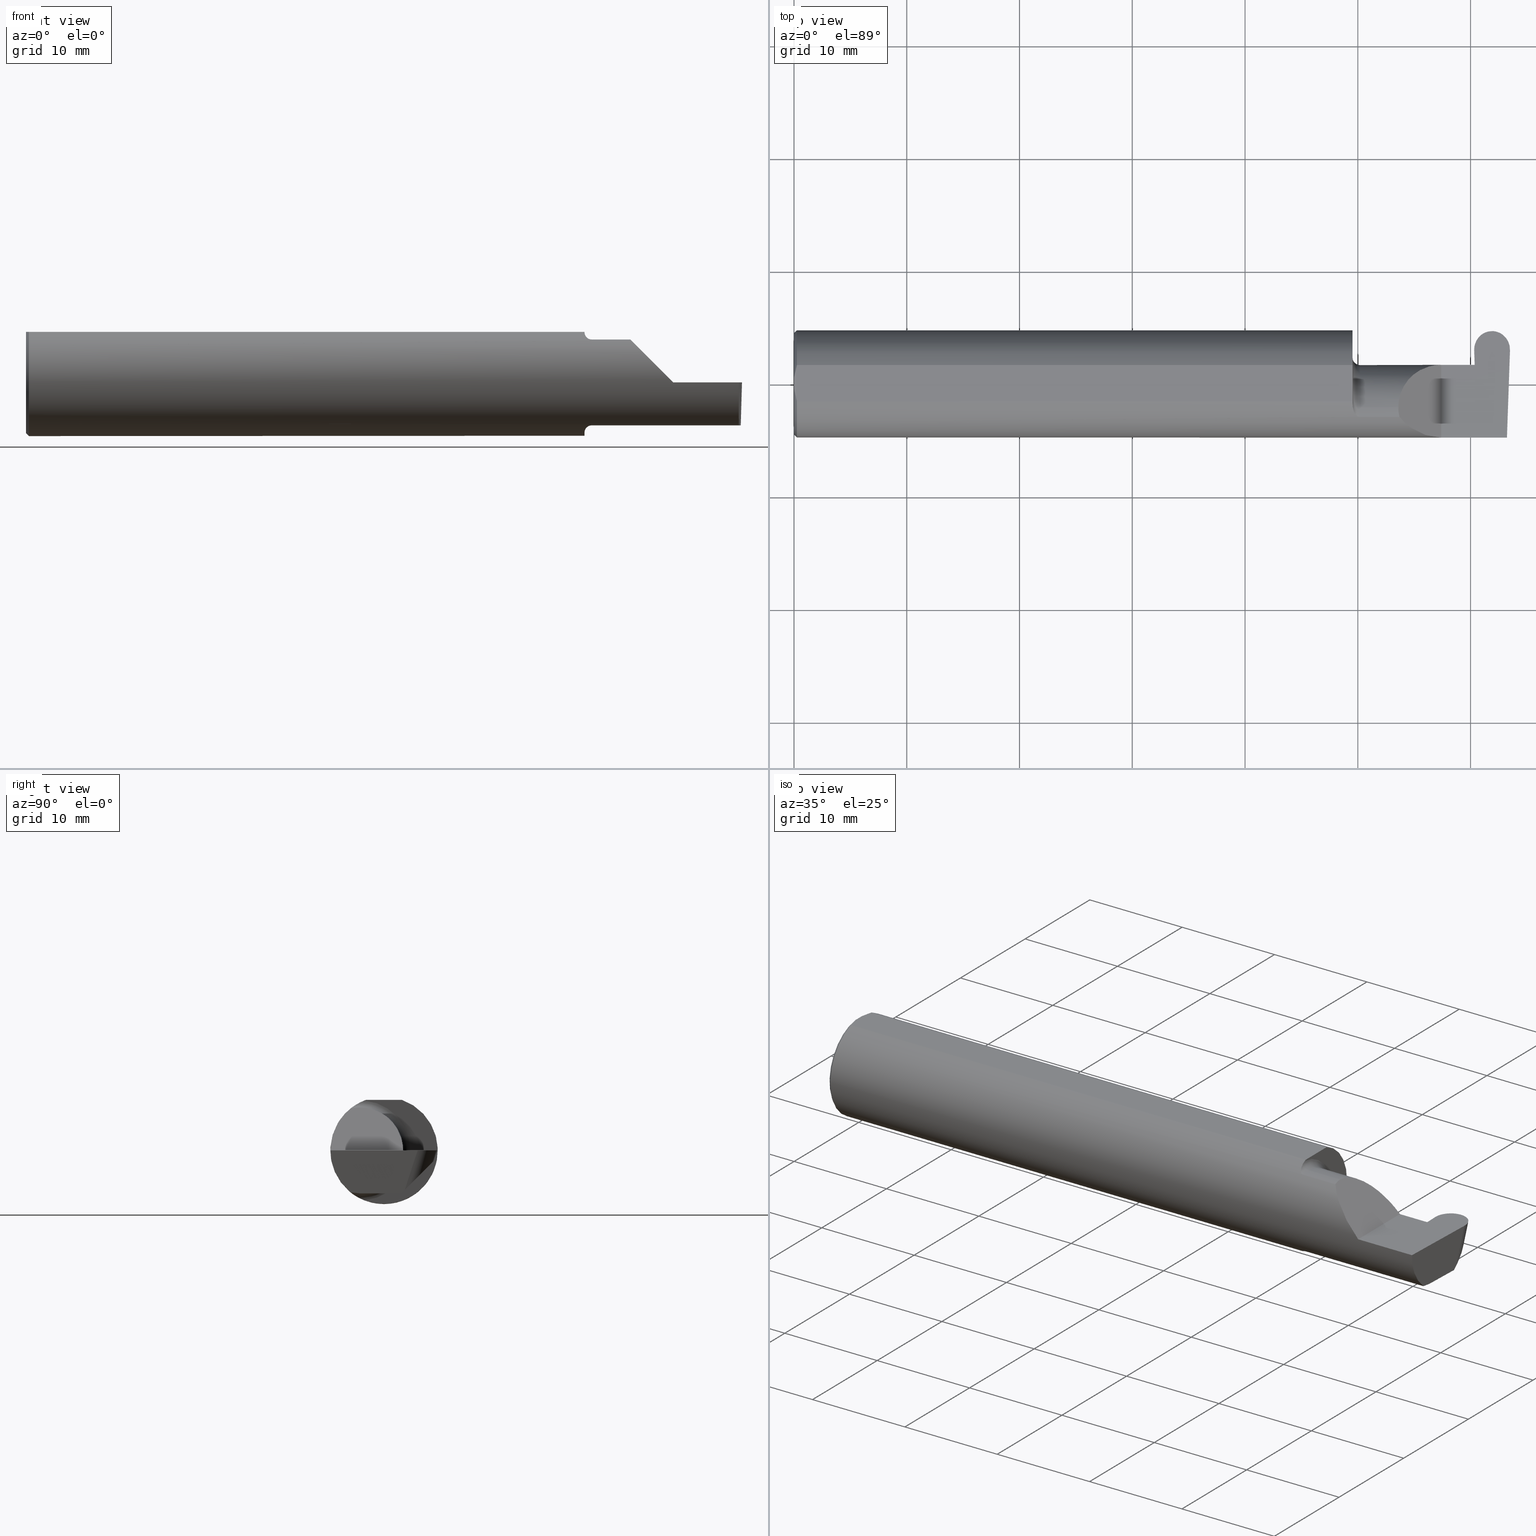
[diagram: canonical four-view strip — front | top / right | iso, engineering-drawing reading convention]
A machine part, canonical four-view strip (front | top / right | iso — engineering-drawing reading convention). The complete STEP part file that produces these views, byte-faithful:
ISO-10303-21;
HEADER;
FILE_DESCRIPTION (( 'STEP AP203' ),
    '1' );
FILE_NAME ('222209-GFR124-8.STEP',
    '2024-06-28T18:58:16',
    ( '' ),
    ( '' ),
    'SwSTEP 2.0',
    'SolidWorks 2024',
    '' );
FILE_SCHEMA (( 'CONFIG_CONTROL_DESIGN' ));
ENDSEC;

DATA;
#1 = APPLICATION_PROTOCOL_DEFINITION ( 'international standard', 'config_control_design', 1994, #558 ) ;
#2 = DIRECTION ( 'NONE',  ( 0.7071067811865426878, 0.000000000000000000, -0.7071067811865523467 ) ) ;
#3 = CARTESIAN_POINT ( 'NONE',  ( 1.970804171164107554, -0.1167508198888948523, -0.1465276362740038363 ) ) ;
#4 = VERTEX_POINT ( 'NONE', #790 ) ;
#5 = EDGE_CURVE ( 'NONE', #8, #614, #389, .T. ) ;
#6 = DIRECTION ( 'NONE',  ( 1.000000000000000000, 0.000000000000000000, 0.000000000000000000 ) ) ;
#7 = CARTESIAN_POINT ( 'NONE',  ( 0.005151108632379595466, -0.04888864921576189376, 0.1763499999999999235 ) ) ;
#8 = VERTEX_POINT ( 'NONE', #556 ) ;
#9 = EDGE_CURVE ( 'NONE', #114, #119, #742, .T. ) ;
#10 = APPROVAL_PERSON_ORGANIZATION ( #738, #381, #571 ) ;
#11 = CARTESIAN_POINT ( 'NONE',  ( 2.367498442027135663, 0.06665000000000002867, 0.000000000000000000 ) ) ;
#12 = AXIS2_PLACEMENT_3D ( 'NONE', #285, #164, #239 ) ;
#13 = LINE ( 'NONE', #337, #724 ) ;
#14 = ORIENTED_EDGE ( 'NONE', *, *, #207, .F. ) ;
#15 = CARTESIAN_POINT ( 'NONE',  ( 1.974999999999999867, -0.08334999999999999354, 0.000000000000000000 ) ) ;
#16 = CC_DESIGN_PERSON_AND_ORGANIZATION_ASSIGNMENT ( #299, #316, ( #203 ) ) ;
#17 = CARTESIAN_POINT ( 'NONE',  ( -0.001039370078740541395, 0.06030305154315079852, -0.1500000000000000500 ) ) ;
#18 = VERTEX_POINT ( 'NONE', #184 ) ;
#19 = CARTESIAN_POINT ( 'NONE',  ( 2.475377307836966079, 0.1846499999999998975, -4.652953611126238856E-18 ) ) ;
#20 = EDGE_CURVE ( 'NONE', #86, #388, #787, .T. ) ;
#21 = CARTESIAN_POINT ( 'NONE',  ( 0.005155213631852355663, 0.04890080824240217866, 0.1763499999999999235 ) ) ;
#22 = VERTEX_POINT ( 'NONE', #230 ) ;
#23 = DIRECTION ( 'NONE',  ( -0.02739170151060026093, -0.3089010440752013587, -0.9506996579664918068 ) ) ;
#24 = CARTESIAN_POINT ( 'NONE',  ( 2.733184360054361939, -0.08335000000000014619, -0.1500000000000000500 ) ) ;
#25 = VECTOR ( 'NONE', #38, 39.37007874015748143 ) ;
#26 = ORIENTED_EDGE ( 'NONE', *, *, #269, .F. ) ;
#27 = APPROVAL ( #615, 'UNSPECIFIED' ) ;
#28 = UNCERTAINTY_MEASURE_WITH_UNIT (LENGTH_MEASURE( 1.000000000000000082E-05 ), #104, 'distance_accuracy_value', 'NONE');
#29 = CARTESIAN_POINT ( 'NONE',  ( 2.434955354293950158, 0.2052772202506527588, 0.06348405618312176479 ) ) ;
#30 = EDGE_LOOP ( 'NONE', ( #533, #202, #334, #209 ) ) ;
#31 = EDGE_CURVE ( 'NONE', #643, #22, #475, .T. ) ;
#32 = CARTESIAN_POINT ( 'NONE',  ( 2.489235021721937002, -0.1873499999999999888, 0.000000000000000000 ) ) ;
#33 = DIRECTION ( 'NONE',  ( -1.000000000000000000, -0.000000000000000000, -0.000000000000000000 ) ) ;
#34 = ORIENTED_EDGE ( 'NONE', *, *, #263, .F. ) ;
#35 = LINE ( 'NONE', #473, #566 ) ;
#36 = PLANE ( 'NONE',  #12 ) ;
#37 = CIRCLE ( 'NONE', #810, 0.1873499999999999888 ) ;
#38 = DIRECTION ( 'NONE',  ( -0.01299916717458399727, 0.7070470357949164564, 0.7070470357949245610 ) ) ;
#39 = VECTOR ( 'NONE', #288, 39.37007874015748143 ) ;
#40 = VECTOR ( 'NONE', #551, 39.37007874015748143 ) ;
#41 = CARTESIAN_POINT ( 'NONE',  ( 2.876828993045917215, 0.1873499999999998500, 0.1763499999999999235 ) ) ;
#42 = CARTESIAN_POINT ( 'NONE',  ( 1.949999999999999956, -0.08334999999999999354, 0.000000000000000000 ) ) ;
#43 = ORIENTED_EDGE ( 'NONE', *, *, #287, .F. ) ;
#44 = FACE_OUTER_BOUND ( 'NONE', #693, .T. ) ;
#45 = DIRECTION ( 'NONE',  ( 0.9998367324388628408, 0.0003153570480505217826, 0.01806679318280387733 ) ) ;
#46 = ADVANCED_FACE ( 'NONE', ( #485 ), #70, .F. ) ;
#47 = VERTEX_POINT ( 'NONE', #382 ) ;
#48 = EDGE_CURVE ( 'NONE', #153, #226, #647, .T. ) ;
#49 = CALENDAR_DATE ( 2024, 28, 6 ) ;
#50 = CARTESIAN_POINT ( 'NONE',  ( 2.109999999999998987, -0.08334999999999999354, 0.1500000000000000500 ) ) ;
#51 = CARTESIAN_POINT ( 'NONE',  ( 2.376713715390371462, 0.06655862405286437633, -0.005234924505376314756 ) ) ;
#52 = CC_DESIGN_APPROVAL ( #193, ( #203 ) ) ;
#53 = DATE_AND_TIME ( #811, #368 ) ;
#54 = DIRECTION ( 'NONE',  ( -0.03489949670249442581, -0.9993908270190959842, 0.000000000000000000 ) ) ;
#55 = ORIENTED_EDGE ( 'NONE', *, *, #618, .F. ) ;
#56 = EDGE_CURVE ( 'NONE', #614, #536, #697, .T. ) ;
#57 = DATE_AND_TIME ( #366, #300 ) ;
#58 = CARTESIAN_POINT ( 'NONE',  ( 1.951062863587535334, -0.08334999999999995191, -0.1677879614275112619 ) ) ;
#59 = CARTESIAN_POINT ( 'NONE',  ( 0.000000000000000000, 0.000000000000000000, 0.000000000000000000 ) ) ;
#60 = ORIENTED_EDGE ( 'NONE', *, *, #608, .F. ) ;
#61 = CARTESIAN_POINT ( 'NONE',  ( 2.474538988275240659, 0.1718204462013807887, -0.03848260534176877606 ) ) ;
#62 = DIRECTION ( 'NONE',  ( -0.03489949670249639646, 0.9993908270190959842, 0.000000000000000000 ) ) ;
#63 = EDGE_LOOP ( 'NONE', ( #506, #483, #442, #372, #378, #143, #767, #593, #651, #247, #166, #400, #710, #663, #101 ) ) ;
#64 = AXIS2_PLACEMENT_3D ( 'NONE', #638, #498, #694 ) ;
#65 = PERSON_AND_ORGANIZATION ( #672, #236 ) ;
#66 = DIRECTION ( 'NONE',  ( 0.02739170151060025399, 0.3089010440752013031, 0.9506996579664918068 ) ) ;
#67 = CC_DESIGN_PERSON_AND_ORGANIZATION_ASSIGNMENT ( #65, #443, ( #203 ) ) ;
#68 = CARTESIAN_POINT ( 'NONE',  ( 1.951062863587535334, -0.08334999999999995191, -0.1677879614275112619 ) ) ;
#69 = DIRECTION ( 'NONE',  ( 0.000000000000000000, 0.9510565162951533091, -0.3090169943749482839 ) ) ;
#70 = PLANE ( 'NONE',  #660 ) ;
#71 = ORIENTED_EDGE ( 'NONE', *, *, #365, .F. ) ;
#72 = EDGE_CURVE ( 'NONE', #718, #86, #420, .T. ) ;
#73 = DIRECTION ( 'NONE',  ( -0.03489949670249442581, -0.9993908270190959842, 0.000000000000000000 ) ) ;
#74 = CARTESIAN_POINT ( 'NONE',  ( 2.378834654010996807, 0.07225145685232274573, -0.1380515946908279779 ) ) ;
#75 = ORIENTED_EDGE ( 'NONE', *, *, #20, .F. ) ;
#76 = CC_DESIGN_SECURITY_CLASSIFICATION ( #157, ( #203 ) ) ;
#77 = AXIS2_PLACEMENT_3D ( 'NONE', #96, #291, #346 ) ;
#78 = CARTESIAN_POINT ( 'NONE',  ( 2.367498442027135663, 0.06665000000000002867, 0.000000000000000000 ) ) ;
#79 = TOROIDAL_SURFACE ( 'NONE', #709, 0.1749999999999999889, 0.02499999999999993894 ) ;
#80 = LINE ( 'NONE', #17, #248 ) ;
#81 = ORIENTED_EDGE ( 'NONE', *, *, #386, .F. ) ;
#82 = EDGE_CURVE ( 'NONE', #212, #8, #577, .T. ) ;
#83 = DIRECTION ( 'NONE',  ( 0.000000000000000000, 0.000000000000000000, -1.000000000000000000 ) ) ;
#84 = EDGE_CURVE ( 'NONE', #714, #524, #108, .T. ) ;
#85 = FACE_OUTER_BOUND ( 'NONE', #493, .T. ) ;
#86 = VERTEX_POINT ( 'NONE', #201 ) ;
#87 = CARTESIAN_POINT ( 'NONE',  ( 1.949999999999999956, 0.000000000000000000, 0.000000000000000000 ) ) ;
#88 = FACE_OUTER_BOUND ( 'NONE', #611, .T. ) ;
#89 = ORIENTED_EDGE ( 'NONE', *, *, #298, .T. ) ;
#90 = LINE ( 'NONE', #454, #518 ) ;
#91 =( GEOMETRIC_REPRESENTATION_CONTEXT ( 3 ) GLOBAL_UNCERTAINTY_ASSIGNED_CONTEXT ( ( #28 ) ) GLOBAL_UNIT_ASSIGNED_CONTEXT ( ( #104, #286, #427 ) ) REPRESENTATION_CONTEXT ( 'NONE', 'WORKASPACE' ) );
#92 = DIRECTION ( 'NONE',  ( 0.000000000000000000, -0.3090169943749481729, -0.9510565162951533091 ) ) ;
#93 = EDGE_CURVE ( 'NONE', #544, #226, #520, .T. ) ;
#94 = CIRCLE ( 'NONE', #302, 0.1500000000000000500 ) ;
#95 = ORIENTED_EDGE ( 'NONE', *, *, #229, .F. ) ;
#96 = CARTESIAN_POINT ( 'NONE',  ( 1.974999999999999867, -0.08334999999999999354, 0.000000000000000000 ) ) ;
#97 = CARTESIAN_POINT ( 'NONE',  ( 1.952158970028689655, -0.09067355718685700394, 0.1641499263364886718 ) ) ;
#98 = ORIENTED_EDGE ( 'NONE', *, *, #776, .T. ) ;
#99 = DIRECTION ( 'NONE',  ( 1.000000000000000000, 0.000000000000000000, 0.000000000000000000 ) ) ;
#100 = CARTESIAN_POINT ( 'NONE',  ( 1.954075010165368553, -0.09778159395695863731, 0.1599914159748310749 ) ) ;
#101 = ORIENTED_EDGE ( 'NONE', *, *, #72, .F. ) ;
#102 = PRODUCT ( '222209-GFR124-8', '222209-GFR124-8', '', ( #281 ) ) ;
#103 = ORIENTED_EDGE ( 'NONE', *, *, #56, .T. ) ;
#104 =( CONVERSION_BASED_UNIT ( 'INCH', #542 ) LENGTH_UNIT ( ) NAMED_UNIT ( #183 ) );
#105 = LINE ( 'NONE', #424, #327 ) ;
#106 = CIRCLE ( 'NONE', #658, 0.1873499999999999888 ) ;
#107 = EDGE_LOOP ( 'NONE', ( #356, #547, #770, #465 ) ) ;
#108 = CIRCLE ( 'NONE', #622, 0.1500000000000000500 ) ;
#109 = TOROIDAL_SURFACE ( 'NONE', #748, 0.1749999999999999889, 0.02499999999999993894 ) ;
#110 = EDGE_CURVE ( 'NONE', #113, #153, #410, .T. ) ;
#111 = FACE_OUTER_BOUND ( 'NONE', #598, .T. ) ;
#112 = ADVANCED_FACE ( 'NONE', ( #191 ), #639, .F. ) ;
#113 = VERTEX_POINT ( 'NONE', #260 ) ;
#114 = VERTEX_POINT ( 'NONE', #312 ) ;
#115 = CARTESIAN_POINT ( 'NONE',  ( 2.109999999999998543, 0.004517965644035750600, 0.1500000000000000500 ) ) ;
#116 = CARTESIAN_POINT ( 'NONE',  ( 2.379376865616626535, -0.08334999999999999354, -0.1500000000000000500 ) ) ;
#117 = APPROVAL_STATUS ( 'not_yet_approved' ) ;
#118 = CARTESIAN_POINT ( 'NONE',  ( 1.949999999999999956, -0.06851976604679065053, -0.1743704796142198643 ) ) ;
#119 = VERTEX_POINT ( 'NONE', #569 ) ;
#120 = EDGE_CURVE ( 'NONE', #4, #759, #441, .T. ) ;
#121 = CC_DESIGN_APPROVAL ( #381, ( #157 ) ) ;
#122 = AXIS2_PLACEMENT_3D ( 'NONE', #42, #350, #676 ) ;
#123 = CARTESIAN_POINT ( 'NONE',  ( 1.974999999999999867, -0.1172600179964006228, 0.1461167706989303650 ) ) ;
#124 = CARTESIAN_POINT ( 'NONE',  ( 0.001595548104417217512, -0.03385300050298979679, 0.1763499999999999235 ) ) ;
#125 = ORIENTED_EDGE ( 'NONE', *, *, #253, .F. ) ;
#126 = CARTESIAN_POINT ( 'NONE',  ( 2.497701985005003511, 0.1068529269586859370, -0.1034501245844643841 ) ) ;
#127 = CARTESIAN_POINT ( 'NONE',  ( 1.961340974786206282, -0.1102890168945985933, -0.1514792188789464422 ) ) ;
#128 = ORIENTED_EDGE ( 'NONE', *, *, #31, .F. ) ;
#129 = PERSON_AND_ORGANIZATION ( #672, #236 ) ;
#130 = DIRECTION ( 'NONE',  ( 0.000000000000000000, 0.000000000000000000, 1.000000000000000000 ) ) ;
#131 = CARTESIAN_POINT ( 'NONE',  ( 2.150065971957464850, -0.1623470442677540371, 0.1099340280425340488 ) ) ;
#132 = ORIENTED_EDGE ( 'NONE', *, *, #428, .T. ) ;
#133 = VECTOR ( 'NONE', #2, 39.37007874015748143 ) ;
#134 = PERSON_AND_ORGANIZATION_ROLE ( 'creator' ) ;
#135 = CYLINDRICAL_SURFACE ( 'NONE', #262, 0.1873499999999999888 ) ;
#136 = CARTESIAN_POINT ( 'NONE',  ( 1.959228130464466089, -0.1072797540790366433, -0.1536407449207395914 ) ) ;
#137 = EDGE_LOOP ( 'NONE', ( #301, #604, #496, #330, #737 ) ) ;
#138 = DIRECTION ( 'NONE',  ( -0.7071067811865509034, 0.000000000000000000, 0.7071067811865440200 ) ) ;
#139 = CARTESIAN_POINT ( 'NONE',  ( 1.949999999999999956, -0.06851976604679065053, 0.1743704796142198643 ) ) ;
#140 = EDGE_LOOP ( 'NONE', ( #578, #730, #283 ) ) ;
#141 = DIRECTION ( 'NONE',  ( 0.000000000000000000, 0.000000000000000000, -1.000000000000000000 ) ) ;
#142 = CARTESIAN_POINT ( 'NONE',  ( -0.001039370078740541395, 0.1846500000000000363, 0.000000000000000000 ) ) ;
#143 = ORIENTED_EDGE ( 'NONE', *, *, #449, .F. ) ;
#144 = EDGE_CURVE ( 'NONE', #314, #212, #557, .T. ) ;
#145 = CONICAL_SURFACE ( 'NONE', #175, 0.1773500000000005072, 0.7853981633974551624 ) ;
#146 = LINE ( 'NONE', #335, #501 ) ;
#147 = CONICAL_SURFACE ( 'NONE', #315, 0.1773500000000005072, 0.7853981633974551624 ) ;
#148 = CIRCLE ( 'NONE', #609, 0.1749999999999999889 ) ;
#149 = CARTESIAN_POINT ( 'NONE',  ( 0.000000000000000000, 0.1873499999999998500, 0.1763499999999999235 ) ) ;
#150 = ORIENTED_EDGE ( 'NONE', *, *, #48, .F. ) ;
#151 = CARTESIAN_POINT ( 'NONE',  ( 2.260000000000000231, -0.2500000000000000555, 2.939152317953647352E-17 ) ) ;
#152 = DIRECTION ( 'NONE',  ( 0.000000000000000000, 0.000000000000000000, -1.000000000000000000 ) ) ;
#153 = VERTEX_POINT ( 'NONE', #305 ) ;
#154 = CARTESIAN_POINT ( 'NONE',  ( 1.974999999999999867, -0.1172600179964006090, -0.1461167706989303927 ) ) ;
#155 = LINE ( 'NONE', #704, #342 ) ;
#156 = ORIENTED_EDGE ( 'NONE', *, *, #700, .T. ) ;
#157 = SECURITY_CLASSIFICATION ( '', '', #448 ) ;
#158 = CARTESIAN_POINT ( 'NONE',  ( 2.260000000000000231, -0.2500000000000000555, 2.939152317953647352E-17 ) ) ;
#159 = EDGE_CURVE ( 'NONE', #161, #687, #561, .T. ) ;
#160 = AXIS2_PLACEMENT_3D ( 'NONE', #686, #242, #513 ) ;
#161 = VERTEX_POINT ( 'NONE', #509 ) ;
#162 =( BOUNDED_CURVE ( )  B_SPLINE_CURVE ( 3, ( #754, #61, #311, #624 ),
 .UNSPECIFIED., .F., .T. ) 
 B_SPLINE_CURVE_WITH_KNOTS ( ( 4, 4 ),
 ( 3.135912951325158016, 4.726229945297544255 ),
 .UNSPECIFIED. ) 
 CURVE ( )  GEOMETRIC_REPRESENTATION_ITEM ( )  RATIONAL_B_SPLINE_CURVE ( ( 1.000000000000000000, 0.8001144080103654854, 0.8001144080103654854, 1.000000000000000000 ) ) 
 REPRESENTATION_ITEM ( '' )  );
#163 = CYLINDRICAL_SURFACE ( 'NONE', #592, 0.1500000000000000500 ) ;
#164 = DIRECTION ( 'NONE',  ( -1.224646799147353947E-16, 0.000000000000000000, -1.000000000000000000 ) ) ;
#165 = VERTEX_POINT ( 'NONE', #755 ) ;
#166 = ORIENTED_EDGE ( 'NONE', *, *, #207, .T. ) ;
#167 =( BOUNDED_CURVE ( )  B_SPLINE_CURVE ( 3, ( #668, #607, #232, #661 ),
 .UNSPECIFIED., .F., .T. ) 
 B_SPLINE_CURVE_WITH_KNOTS ( ( 4, 4 ),
 ( 4.712388980384689674, 4.720665141031025414 ),
 .UNSPECIFIED. ) 
 CURVE ( )  GEOMETRIC_REPRESENTATION_ITEM ( )  RATIONAL_B_SPLINE_CURVE ( ( 1.000000000000000000, 0.9999942921052247247, 0.9999942921052247247, 1.000000000000000000 ) ) 
 REPRESENTATION_ITEM ( '' )  );
#168 = CARTESIAN_POINT ( 'NONE',  ( 1.949999999999999956, -0.08334999999999999354, 0.000000000000000000 ) ) ;
#169 = LINE ( 'NONE', #228, #39 ) ;
#170 = ORIENTED_EDGE ( 'NONE', *, *, #93, .T. ) ;
#171 = ADVANCED_FACE ( 'NONE', ( #196 ), #445, .T. ) ;
#172 = ORIENTED_EDGE ( 'NONE', *, *, #455, .T. ) ;
#173 = ADVANCED_FACE ( 'NONE', ( #471 ), #147, .T. ) ;
#174 = FACE_OUTER_BOUND ( 'NONE', #107, .T. ) ;
#175 = AXIS2_PLACEMENT_3D ( 'NONE', #587, #398, #83 ) ;
#176 = EDGE_LOOP ( 'NONE', ( #735, #564, #26, #71, #654, #528, #55, #809 ) ) ;
#177 = CIRCLE ( 'NONE', #481, 0.1873499999999999888 ) ;
#178 = FACE_OUTER_BOUND ( 'NONE', #197, .T. ) ;
#179 = FACE_OUTER_BOUND ( 'NONE', #176, .T. ) ;
#180 = ORIENTED_EDGE ( 'NONE', *, *, #9, .F. ) ;
#181 = ADVANCED_FACE ( 'NONE', ( #585 ), #469, .F. ) ;
#182 = CARTESIAN_POINT ( 'NONE',  ( 1.949999999999999956, -0.06325108694718283020, 0.1763499999999999235 ) ) ;
#183 = DIMENSIONAL_EXPONENTS ( 1.000000000000000000, 0.000000000000000000, 0.000000000000000000, 0.000000000000000000, 0.000000000000000000, 0.000000000000000000, 0.000000000000000000 ) ;
#184 = CARTESIAN_POINT ( 'NONE',  ( 2.374857090704703300, 0.1171071390637349746, 0.000000000000000000 ) ) ;
#185 = PERSON_AND_ORGANIZATION ( #672, #236 ) ;
#186 = CARTESIAN_POINT ( 'NONE',  ( 2.373483501636015180, 0.1564415835413277556, 1.582374065488283881E-17 ) ) ;
#187 = CARTESIAN_POINT ( 'NONE',  ( 1.952380638915945488, -0.09060738690120608008, -0.1640321561807271122 ) ) ;
#188 = VERTEX_POINT ( 'NONE', #139 ) ;
#189 = VECTOR ( 'NONE', #745, 39.37007874015748143 ) ;
#190 = FACE_OUTER_BOUND ( 'NONE', #63, .T. ) ;
#191 = FACE_OUTER_BOUND ( 'NONE', #413, .T. ) ;
#192 = EDGE_LOOP ( 'NONE', ( #677, #128, #132, #348 ) ) ;
#193 = APPROVAL ( #117, 'UNSPECIFIED' ) ;
#194 = DATE_TIME_ROLE ( 'classification_date' ) ;
#195 = CARTESIAN_POINT ( 'NONE',  ( 0.000000000000000000, 0.000000000000000000, 0.000000000000000000 ) ) ;
#196 = FACE_OUTER_BOUND ( 'NONE', #751, .T. ) ;
#197 = EDGE_LOOP ( 'NONE', ( #728, #261, #457 ) ) ;
#198 = EDGE_CURVE ( 'NONE', #626, #570, #13, .T. ) ;
#199 = ADVANCED_FACE ( 'NONE', ( #266 ), #459, .F. ) ;
#200 = CARTESIAN_POINT ( 'NONE',  ( 2.399346682163034483, 0.1846500000000001473, 1.265641453006449190E-17 ) ) ;
#201 = CARTESIAN_POINT ( 'NONE',  ( 1.951062863587535334, -0.08334999999999995191, -0.1677879614275112619 ) ) ;
#202 = ORIENTED_EDGE ( 'NONE', *, *, #690, .F. ) ;
#203 = PRODUCT_DEFINITION_FORMATION_WITH_SPECIFIED_SOURCE ( 'ANY', '', #102, .NOT_KNOWN. ) ;
#204 = DIRECTION ( 'NONE',  ( 0.000000000000000000, 1.000000000000000000, 0.000000000000000000 ) ) ;
#205 = ORIENTED_EDGE ( 'NONE', *, *, #634, .F. ) ;
#206 = PLANE ( 'NONE',  #246 ) ;
#207 = EDGE_CURVE ( 'NONE', #222, #702, #177, .T. ) ;
#208 = CARTESIAN_POINT ( 'NONE',  ( 2.499961842619776053, 0.1198259601510516942, 0.000000000000000000 ) ) ;
#209 = ORIENTED_EDGE ( 'NONE', *, *, #489, .T. ) ;
#210 = DIRECTION ( 'NONE',  ( 1.000000000000000000, 0.000000000000000000, 0.000000000000000000 ) ) ;
#211 = DIRECTION ( 'NONE',  ( -0.01806954526206913311, 0.01744955702544858864, 0.9996844524616943506 ) ) ;
#212 = VERTEX_POINT ( 'NONE', #591 ) ;
#213 = FACE_OUTER_BOUND ( 'NONE', #192, .T. ) ;
#214 = DIRECTION ( 'NONE',  ( 1.000000000000000000, 0.000000000000000000, -0.000000000000000000 ) ) ;
#215 = ORIENTED_EDGE ( 'NONE', *, *, #5, .T. ) ;
#216 = PRODUCT_DEFINITION_SHAPE ( 'NONE', 'NONE',  #522 ) ;
#217 = CARTESIAN_POINT ( 'NONE',  ( 2.437939523532632435, 0.1846500000000000363, 0.000000000000000000 ) ) ;
#218 = CARTESIAN_POINT ( 'NONE',  ( -0.001039370078740541395, 0.1723030515431495657, -0.03799999999999999906 ) ) ;
#219 = ORIENTED_EDGE ( 'NONE', *, *, #159, .F. ) ;
#220 = ADVANCED_FACE ( 'NONE', ( #278 ), #535, .F. ) ;
#221 = DIRECTION ( 'NONE',  ( -0.02739170151060026440, -0.3089010440752013587, -0.9506996579664920288 ) ) ;
#222 = VERTEX_POINT ( 'NONE', #531 ) ;
#223 = CARTESIAN_POINT ( 'NONE',  ( 0.000000000000000000, 0.000000000000000000, 0.000000000000000000 ) ) ;
#224 = CARTESIAN_POINT ( 'NONE',  ( 1.966924463282974322, -0.1152182125075826291, 0.1477647100440766248 ) ) ;
#225 = VECTOR ( 'NONE', #720, 39.37007874015748143 ) ;
#226 = VERTEX_POINT ( 'NONE', #653 ) ;
#227 = APPLICATION_PROTOCOL_DEFINITION ( 'international standard', 'config_control_design', 1994, #476 ) ;
#228 = CARTESIAN_POINT ( 'NONE',  ( 1.949999999999999956, -0.08334999999999999354, 0.1500000000000000500 ) ) ;
#229 = EDGE_CURVE ( 'NONE', #614, #570, #155, .T. ) ;
#230 = CARTESIAN_POINT ( 'NONE',  ( 2.113883229301068312, -0.1172600179964003175, 0.1461167706989304760 ) ) ;
#231 = B_SPLINE_CURVE_WITH_KNOTS ( 'NONE', 3,
 ( #736, #97, #100, #347, #600, #224, #628, #123 ),
 .UNSPECIFIED., .F., .F.,
 ( 4, 2, 2, 4 ),
 ( 0.0004561457252213479583, 0.001084815134961798072, 0.001399149839832026978, 0.001713484544702255884 ),
 .UNSPECIFIED. ) ;
#232 = CARTESIAN_POINT ( 'NONE',  ( 2.437361994999999837, 0.1742461545025661696, -0.03201743511553457183 ) ) ;
#233 = CARTESIAN_POINT ( 'NONE',  ( 2.437361994999999837, 0.1722997177119686141, -0.03800333383118099234 ) ) ;
#234 = ORIENTED_EDGE ( 'NONE', *, *, #229, .T. ) ;
#235 = CARTESIAN_POINT ( 'NONE',  ( 2.488188068920404561, -0.1623470442677541203, -0.1099340280425338823 ) ) ;
#236 = ORGANIZATION ( 'UNSPECIFIED', 'UNSPECIFIED', '' ) ;
#237 = ORIENTED_EDGE ( 'NONE', *, *, #354, .F. ) ;
#238 = ADVANCED_FACE ( 'NONE', ( #88 ), #778, .F. ) ;
#239 = DIRECTION ( 'NONE',  ( -1.000000000000000000, 0.000000000000000000, 1.224646799147353947E-16 ) ) ;
#240 = ORIENTED_EDGE ( 'NONE', *, *, #690, .T. ) ;
#241 = DIRECTION ( 'NONE',  ( 0.000000000000000000, 0.000000000000000000, 1.000000000000000000 ) ) ;
#242 = DIRECTION ( 'NONE',  ( -1.000000000000000000, -0.000000000000000000, -0.000000000000000000 ) ) ;
#243 = ORIENTED_EDGE ( 'NONE', *, *, #537, .F. ) ;
#244 = CARTESIAN_POINT ( 'NONE',  ( 2.174861995000000103, -0.1172600179964006090, 0.1461167706989303927 ) ) ;
#245 = DIRECTION ( 'NONE',  ( 0.000000000000000000, 0.000000000000000000, -1.000000000000000000 ) ) ;
#246 = AXIS2_PLACEMENT_3D ( 'NONE', #393, #650, #777 ) ;
#247 = ORIENTED_EDGE ( 'NONE', *, *, #401, .T. ) ;
#248 = VECTOR ( 'NONE', #463, 39.37007874015748143 ) ;
#249 = AXIS2_PLACEMENT_3D ( 'NONE', #548, #799, #429 ) ;
#250 = APPROVAL_STATUS ( 'not_yet_approved' ) ;
#251 = DIRECTION ( 'NONE',  ( -1.000000000000000000, -0.000000000000000000, -0.000000000000000000 ) ) ;
#252 = DIRECTION ( 'NONE',  ( 1.000000000000000000, -0.000000000000000000, -0.000000000000000000 ) ) ;
#253 = EDGE_CURVE ( 'NONE', #113, #702, #804, .T. ) ;
#254 = VERTEX_POINT ( 'NONE', #343 ) ;
#255 = APPROVAL_DATE_TIME ( #689, #381 ) ;
#256 = LINE ( 'NONE', #341, #326 ) ;
#257 = DIRECTION ( 'NONE',  ( 1.000000000000000000, 0.000000000000000000, 0.000000000000000000 ) ) ;
#258 = ORIENTED_EDGE ( 'NONE', *, *, #9, .T. ) ;
#259 = DIRECTION ( 'NONE',  ( 1.000000000000000000, 0.000000000000000000, 0.000000000000000000 ) ) ;
#260 = CARTESIAN_POINT ( 'NONE',  ( 0.000000000000000000, 0.01880691362239451242, 0.1763499999999999235 ) ) ;
#261 = ORIENTED_EDGE ( 'NONE', *, *, #20, .T. ) ;
#262 = AXIS2_PLACEMENT_3D ( 'NONE', #195, #560, #679 ) ;
#263 = EDGE_CURVE ( 'NONE', #47, #161, #646, .T. ) ;
#264 = AXIS2_PLACEMENT_3D ( 'NONE', #208, #717, #270 ) ;
#265 = CARTESIAN_POINT ( 'NONE',  ( 2.501240488363984493, 0.1564415835413276723, -7.820279735944560344E-18 ) ) ;
#266 = FACE_OUTER_BOUND ( 'NONE', #293, .T. ) ;
#267 = ORIENTED_EDGE ( 'NONE', *, *, #198, .F. ) ;
#268 = CARTESIAN_POINT ( 'NONE',  ( 2.370339365822884847, 0.2344171368549178014, 0.02411408531176896519 ) ) ;
#269 = EDGE_CURVE ( 'NONE', #524, #388, #94, .T. ) ;
#270 = DIRECTION ( 'NONE',  ( -0.03489949670249442581, -0.9993908270190959842, 0.000000000000000000 ) ) ;
#271 = VERTEX_POINT ( 'NONE', #642 ) ;
#272 = FACE_OUTER_BOUND ( 'NONE', #30, .T. ) ;
#273 = CARTESIAN_POINT ( 'NONE',  ( 0.009999999999999346217, 0.06325108694718235836, 0.1763499999999999235 ) ) ;
#274 = ORIENTED_EDGE ( 'NONE', *, *, #489, .F. ) ;
#275 =( BOUNDED_CURVE ( )  B_SPLINE_CURVE ( 3, ( #795, #235, #785, #492 ),
 .UNSPECIFIED., .F., .T. ) 
 B_SPLINE_CURVE_WITH_KNOTS ( ( 4, 4 ),
 ( 5.852427379562172405, 6.746954780470620250 ),
 .UNSPECIFIED. ) 
 CURVE ( )  GEOMETRIC_REPRESENTATION_ITEM ( )  RATIONAL_B_SPLINE_CURVE ( ( 1.000000000000000000, 0.9344226172588802060, 0.9344226172588802060, 1.000000000000000000 ) ) 
 REPRESENTATION_ITEM ( '' )  );
#276 = CARTESIAN_POINT ( 'NONE',  ( 1.949999999999999956, -0.06851976604679065053, 0.1743704796142198643 ) ) ;
#277 = AXIS2_PLACEMENT_3D ( 'NONE', #766, #221, #540 ) ;
#278 = FACE_OUTER_BOUND ( 'NONE', #396, .T. ) ;
#279 = EDGE_LOOP ( 'NONE', ( #95, #103, #322, #470 ) ) ;
#280 = B_SPLINE_CURVE_WITH_KNOTS ( 'NONE', 3,
 ( #58, #450, #691, #118 ),
 .UNSPECIFIED., .F., .F.,
 ( 4, 4 ),
 ( 0.001278539404338874426, 0.001694873732696222874 ),
 .UNSPECIFIED. ) ;
#281 = MECHANICAL_CONTEXT ( 'NONE', #476, 'mechanical' ) ;
#282 = DIRECTION ( 'NONE',  ( -0.02739170151060087155, 0.3089010440752013587, 0.9506996579664918068 ) ) ;
#283 = ORIENTED_EDGE ( 'NONE', *, *, #84, .T. ) ;
#284 =( LENGTH_UNIT ( ) NAMED_UNIT ( * ) SI_UNIT ( $, .METRE. ) );
#285 = CARTESIAN_POINT ( 'NONE',  ( 2.500000000000000000, -0.2500000000000000555, 0.000000000000000000 ) ) ;
#286 =( NAMED_UNIT ( * ) PLANE_ANGLE_UNIT ( ) SI_UNIT ( $, .RADIAN. ) );
#287 = EDGE_CURVE ( 'NONE', #764, #364, #721, .T. ) ;
#288 = DIRECTION ( 'NONE',  ( -1.000000000000000000, -0.000000000000000000, -0.000000000000000000 ) ) ;
#289 = AXIS2_PLACEMENT_3D ( 'NONE', #763, #451, #245 ) ;
#290 = DIRECTION ( 'NONE',  ( -0.000000000000000000, 1.000000000000000000, 1.224646799147353207E-16 ) ) ;
#291 = DIRECTION ( 'NONE',  ( -1.000000000000000000, -0.000000000000000000, -0.000000000000000000 ) ) ;
#292 = CARTESIAN_POINT ( 'NONE',  ( 2.172132034355963359, 0.06665000000000001479, 0.08786796564403576149 ) ) ;
#293 = EDGE_LOOP ( 'NONE', ( #446, #648, #89, #408 ) ) ;
#294 = CARTESIAN_POINT ( 'NONE',  ( 0.000000000000000000, -0.06325108694718235836, 0.1763499999999999235 ) ) ;
#295 = ADVANCED_BREP_SHAPE_REPRESENTATION ( '222209-GFR124-8', ( #739, #722 ), #91 ) ;
#296 = DIRECTION ( 'NONE',  ( 0.01806679408117584443, 0.000000000000000000, -0.9998367821557817559 ) ) ;
#297 = ORIENTED_EDGE ( 'NONE', *, *, #303, .T. ) ;
#298 = EDGE_CURVE ( 'NONE', #114, #510, #80, .T. ) ;
#299 = PERSON_AND_ORGANIZATION ( #672, #236 ) ;
#300 = LOCAL_TIME ( 11, 58, 16.00000000000000000, #565 ) ;
#301 = ORIENTED_EDGE ( 'NONE', *, *, #338, .F. ) ;
#302 = AXIS2_PLACEMENT_3D ( 'NONE', #394, #477, #391 ) ;
#303 = EDGE_CURVE ( 'NONE', #226, #113, #708, .T. ) ;
#304 = CARTESIAN_POINT ( 'NONE',  ( 2.437286428073571543, 0.1195482582578416830, 0.001891689792461072024 ) ) ;
#305 = CARTESIAN_POINT ( 'NONE',  ( 0.000000000000000000, 0.000000000000000000, -0.1773500000000005072 ) ) ;
#306 = APPROVAL_DATE_TIME ( #507, #27 ) ;
#307 = FACE_OUTER_BOUND ( 'NONE', #541, .T. ) ;
#308 = CARTESIAN_POINT ( 'NONE',  ( 1.974999999999999867, -0.1172600179964006090, -0.1461167706989303927 ) ) ;
#309 = ORIENTED_EDGE ( 'NONE', *, *, #120, .T. ) ;
#310 = ADVANCED_FACE ( 'NONE', ( #85 ), #36, .F. ) ;
#311 = CARTESIAN_POINT ( 'NONE',  ( 2.498921893354421719, 0.1301396316170288781, -0.08016341992612120715 ) ) ;
#312 = CARTESIAN_POINT ( 'NONE',  ( 2.379331556216793597, 0.06030305154315079852, -0.1500000000000000500 ) ) ;
#313 = VECTOR ( 'NONE', #6, 39.37007874015748143 ) ;
#314 = VERTEX_POINT ( 'NONE', #616 ) ;
#315 = AXIS2_PLACEMENT_3D ( 'NONE', #769, #333, #597 ) ;
#316 = PERSON_AND_ORGANIZATION_ROLE ( 'creator' ) ;
#317 = LINE ( 'NONE', #740, #468 ) ;
#318 = CARTESIAN_POINT ( 'NONE',  ( 1.974999999999999867, -0.08334999999999999354, 0.000000000000000000 ) ) ;
#319 = ORIENTED_EDGE ( 'NONE', *, *, #789, .T. ) ;
#320 = LINE ( 'NONE', #502, #619 ) ;
#321 = DIRECTION ( 'NONE',  ( 0.9992386149554828290, 0.03489418134010909694, 0.01745240643728358798 ) ) ;
#322 = ORIENTED_EDGE ( 'NONE', *, *, #618, .T. ) ;
#323 = CARTESIAN_POINT ( 'NONE',  ( 2.109999999999998987, -0.08334999999999999354, 0.1500000000000000500 ) ) ;
#324 = CARTESIAN_POINT ( 'NONE',  ( 2.375802096645578843, 0.1301396316170286560, -0.08016341992612137368 ) ) ;
#325 = ORIENTED_EDGE ( 'NONE', *, *, #634, .T. ) ;
#326 = VECTOR ( 'NONE', #73, 39.37007874015748143 ) ;
#327 = VECTOR ( 'NONE', #359, 39.37007874015748143 ) ;
#328 = PLANE ( 'NONE',  #340 ) ;
#329 = CARTESIAN_POINT ( 'NONE',  ( 2.437361994999999837, 0.1722997177119686141, -0.03800333383118099234 ) ) ;
#330 = ORIENTED_EDGE ( 'NONE', *, *, #438, .T. ) ;
#331 = CARTESIAN_POINT ( 'NONE',  ( 1.949999999999999956, -0.06851976604679065053, -0.1743704796142198643 ) ) ;
#332 = CC_DESIGN_PERSON_AND_ORGANIZATION_ASSIGNMENT ( #129, #631, ( #157 ) ) ;
#333 = DIRECTION ( 'NONE',  ( 1.000000000000000000, 0.000000000000000000, 0.000000000000000000 ) ) ;
#334 = ORIENTED_EDGE ( 'NONE', *, *, #681, .T. ) ;
#335 = CARTESIAN_POINT ( 'NONE',  ( 1.949999999999999956, 0.1873499999999998500, 0.1763499999999999235 ) ) ;
#336 = ADVANCED_FACE ( 'NONE', ( #174 ), #610, .T. ) ;
#337 = CARTESIAN_POINT ( 'NONE',  ( 2.376619092827160884, 0.06665000000000002867, 0.000000000000000000 ) ) ;
#338 = EDGE_CURVE ( 'NONE', #8, #388, #415, .T. ) ;
#339 = ORIENTED_EDGE ( 'NONE', *, *, #120, .F. ) ;
#340 = AXIS2_PLACEMENT_3D ( 'NONE', #151, #645, #138 ) ;
#341 = CARTESIAN_POINT ( 'NONE',  ( 2.490542817754151539, -0.07487677063221394314, -0.1500000000000000500 ) ) ;
#342 = VECTOR ( 'NONE', #211, 39.37007874015748854 ) ;
#343 = CARTESIAN_POINT ( 'NONE',  ( 2.260000000000000231, 0.06665000000000002867, 6.735557395310446214E-17 ) ) ;
#344 = ORIENTED_EDGE ( 'NONE', *, *, #574, .F. ) ;
#345 = CC_DESIGN_PERSON_AND_ORGANIZATION_ASSIGNMENT ( #538, #783, ( #102 ) ) ;
#346 = DIRECTION ( 'NONE',  ( 0.000000000000000000, 0.000000000000000000, 1.000000000000000000 ) ) ;
#347 = CARTESIAN_POINT ( 'NONE',  ( 1.959249444250374061, -0.1073163636891284745, 0.1536158790136665508 ) ) ;
#348 = ORIENTED_EDGE ( 'NONE', *, *, #349, .F. ) ;
#349 = EDGE_CURVE ( 'NONE', #165, #254, #801, .T. ) ;
#350 = DIRECTION ( 'NONE',  ( -1.000000000000000000, -0.000000000000000000, -0.000000000000000000 ) ) ;
#351 = ORIENTED_EDGE ( 'NONE', *, *, #649, .F. ) ;
#352 = AXIS2_PLACEMENT_3D ( 'NONE', #15, #655, #703 ) ;
#353 = DIRECTION ( 'NONE',  ( -1.000000000000000000, -0.000000000000000000, -0.000000000000000000 ) ) ;
#354 = EDGE_CURVE ( 'NONE', #18, #764, #105, .T. ) ;
#355 = AXIS2_PLACEMENT_3D ( 'NONE', #792, #363, #673 ) ;
#356 = ORIENTED_EDGE ( 'NONE', *, *, #688, .T. ) ;
#357 = ORIENTED_EDGE ( 'NONE', *, *, #253, .T. ) ;
#358 = LINE ( 'NONE', #294, #464 ) ;
#359 = DIRECTION ( 'NONE',  ( 0.02739170151060085767, -0.3089010440752013031, -0.9506996579664918068 ) ) ;
#360 =( BOUNDED_CURVE ( )  B_SPLINE_CURVE ( 3, ( #402, #265, #19, #217 ),
 .UNSPECIFIED., .F., .F. ) 
 B_SPLINE_CURVE_WITH_KNOTS ( ( 4, 4 ),
 ( 1.627103621474502493, 3.225696776093221807 ),
 .UNSPECIFIED. ) 
 CURVE ( )  GEOMETRIC_REPRESENTATION_ITEM ( )  RATIONAL_B_SPLINE_CURVE ( ( 1.000000000000000000, 0.7981407609938093728, 0.7981407609938093728, 1.000000000000000000 ) ) 
 REPRESENTATION_ITEM ( '' )  );
#361 = ORIENTED_EDGE ( 'NONE', *, *, #466, .T. ) ;
#362 = DIRECTION ( 'NONE',  ( 0.000000000000000000, 0.000000000000000000, 1.000000000000000000 ) ) ;
#363 = DIRECTION ( 'NONE',  ( 1.000000000000000000, 0.000000000000000000, 0.000000000000000000 ) ) ;
#364 = VERTEX_POINT ( 'NONE', #233 ) ;
#365 = EDGE_CURVE ( 'NONE', #165, #524, #169, .T. ) ;
#366 = CALENDAR_DATE ( 2024, 28, 6 ) ;
#367 = DIRECTION ( 'NONE',  ( -1.000000000000000000, -0.000000000000000000, -0.000000000000000000 ) ) ;
#368 = LOCAL_TIME ( 11, 58, 16.00000000000000000, #620 ) ;
#369 = CARTESIAN_POINT ( 'NONE',  ( 2.113883229301068312, -0.1172600179964003175, 0.1461167706989304760 ) ) ;
#370 = LINE ( 'NONE', #126, #505 ) ;
#371 = CARTESIAN_POINT ( 'NONE',  ( 1.951612951569643428, -0.08702537370779860060, -0.1659621904011592264 ) ) ;
#372 = ORIENTED_EDGE ( 'NONE', *, *, #31, .T. ) ;
#373 = ADVANCED_FACE ( 'NONE', ( #603 ), #79, .F. ) ;
#374 = COORDINATED_UNIVERSAL_TIME_OFFSET ( 8, 0, .BEHIND. ) ;
#375 = ADVANCED_FACE ( 'NONE', ( #179 ), #482, .T. ) ;
#376 = CARTESIAN_POINT ( 'NONE',  ( 0.000000000000000000, 0.000000000000000000, -0.1773500000000005072 ) ) ;
#377 = CARTESIAN_POINT ( 'NONE',  ( 1.955806801261506855, -0.1009700360460131230, -0.1578590382459147679 ) ) ;
#378 = ORIENTED_EDGE ( 'NONE', *, *, #515, .F. ) ;
#379 = CALENDAR_DATE ( 2024, 28, 6 ) ;
#380 = CARTESIAN_POINT ( 'NONE',  ( 1.974999999999999867, -0.08334999999999999354, 0.000000000000000000 ) ) ;
#381 = APPROVAL ( #250, 'UNSPECIFIED' ) ;
#382 = CARTESIAN_POINT ( 'NONE',  ( 2.437361994999999837, 0.1781371089828279186, -0.02004461746296724509 ) ) ;
#383 = AXIS2_PLACEMENT_3D ( 'NONE', #612, #414, #409 ) ;
#384 = ORIENTED_EDGE ( 'NONE', *, *, #549, .F. ) ;
#385 = PLANE ( 'NONE',  #64 ) ;
#386 = EDGE_CURVE ( 'NONE', #759, #643, #419, .T. ) ;
#387 = CARTESIAN_POINT ( 'NONE',  ( 1.954475235432781677, -0.09757364237049399869, -0.1599863467203318512 ) ) ;
#388 = VERTEX_POINT ( 'NONE', #726 ) ;
#389 =( BOUNDED_CURVE ( )  B_SPLINE_CURVE ( 3, ( #116, #793, #550, #51 ),
 .UNSPECIFIED., .F., .T. ) 
 B_SPLINE_CURVE_WITH_KNOTS ( ( 4, 4 ),
 ( 3.159045946109736214, 4.694935687864738583 ),
 .UNSPECIFIED. ) 
 CURVE ( )  GEOMETRIC_REPRESENTATION_ITEM ( )  RATIONAL_B_SPLINE_CURVE ( ( 1.000000000000000000, 0.8128932002257691636, 0.8128932002257691636, 1.000000000000000000 ) ) 
 REPRESENTATION_ITEM ( '' )  );
#390 = CARTESIAN_POINT ( 'NONE',  ( 2.109999999999998543, -0.09477667630339406402, 0.1500000000000000222 ) ) ;
#391 = DIRECTION ( 'NONE',  ( 0.000000000000000000, 0.000000000000000000, 1.000000000000000000 ) ) ;
#392 = EDGE_LOOP ( 'NONE', ( #519, #640, #309, #552, #698, #60 ) ) ;
#393 = CARTESIAN_POINT ( 'NONE',  ( 1.949999999999999956, 0.1873499999999999610, 0.000000000000000000 ) ) ;
#394 = CARTESIAN_POINT ( 'NONE',  ( 1.974999999999999867, -0.08334999999999999354, 0.000000000000000000 ) ) ;
#395 = CIRCLE ( 'NONE', #352, 0.1500000000000000500 ) ;
#396 = EDGE_LOOP ( 'NONE', ( #156, #756, #586 ) ) ;
#397 = VECTOR ( 'NONE', #665, 39.37007874015748143 ) ;
#398 = DIRECTION ( 'NONE',  ( 1.000000000000000000, 0.000000000000000000, 0.000000000000000000 ) ) ;
#399 = DIRECTION ( 'NONE',  ( -0.000000000000000000, 1.000000000000000000, -0.000000000000000000 ) ) ;
#400 = ORIENTED_EDGE ( 'NONE', *, *, #583, .F. ) ;
#401 = EDGE_CURVE ( 'NONE', #544, #222, #711, .T. ) ;
#402 = CARTESIAN_POINT ( 'NONE',  ( 2.499866899295296374, 0.1171071390637350995, 0.000000000000000000 ) ) ;
#403 = DIRECTION ( 'NONE',  ( 0.000000000000000000, -0.9510565162951534202, 0.3090169943749482284 ) ) ;
#404 = ORIENTED_EDGE ( 'NONE', *, *, #466, .F. ) ;
#405 = CARTESIAN_POINT ( 'NONE',  ( 2.367437524729044895, 0.06658908270190960765, -0.003489949670250024321 ) ) ;
#406 = PRODUCT_RELATED_PRODUCT_CATEGORY ( 'detail', '', ( #102 ) ) ;
#407 = DIRECTION ( 'NONE',  ( 0.000000000000000000, -0.7071067811865433539, -0.7071067811865515695 ) ) ;
#408 = ORIENTED_EDGE ( 'NONE', *, *, #608, .T. ) ;
#409 = DIRECTION ( 'NONE',  ( 0.000000000000000000, 0.000000000000000000, -1.000000000000000000 ) ) ;
#410 = CIRCLE ( 'NONE', #289, 0.1773500000000005072 ) ;
#411 = LINE ( 'NONE', #662, #40 ) ;
#412 = ADVANCED_FACE ( 'NONE', ( #111 ), #613, .F. ) ;
#413 = EDGE_LOOP ( 'NONE', ( #325, #461, #422, #361, #234 ) ) ;
#414 = DIRECTION ( 'NONE',  ( 0.000000000000000000, -1.000000000000000000, 0.000000000000000000 ) ) ;
#415 = LINE ( 'NONE', #546, #225 ) ;
#416 = ORIENTED_EDGE ( 'NONE', *, *, #269, .T. ) ;
#417 = EDGE_CURVE ( 'NONE', #314, #759, #275, .T. ) ;
#418 = CARTESIAN_POINT ( 'NONE',  ( 2.378834654010996807, 0.07225145685232274573, -0.1380515946908279779 ) ) ;
#419 = LINE ( 'NONE', #732, #425 ) ;
#420 = B_SPLINE_CURVE_WITH_KNOTS ( 'NONE', 3,
 ( #308, #758, #3, #563, #636, #127, #136, #377, #387, #187, #371, #68 ),
 .UNSPECIFIED., .F., .F.,
 ( 4, 2, 2, 2, 2, 4 ),
 ( 1.967976973726874814E-07, 0.0001599896235275606951, 0.0003197824493577486652, 0.0006393681010181240633, 0.0009589537526784994072, 0.001278539404338874426 ),
 .UNSPECIFIED. ) ;
#421 = ORIENTED_EDGE ( 'NONE', *, *, #667, .T. ) ;
#422 = ORIENTED_EDGE ( 'NONE', *, *, #657, .F. ) ;
#423 = AXIS2_PLACEMENT_3D ( 'NONE', #304, #576, #69 ) ;
#424 = CARTESIAN_POINT ( 'NONE',  ( 2.374834014638854018, 0.1173673719240848623, 0.0008009143901308464746 ) ) ;
#425 = VECTOR ( 'NONE', #669, 39.37007874015748143 ) ;
#426 = ORIENTED_EDGE ( 'NONE', *, *, #401, .F. ) ;
#427 =( NAMED_UNIT ( * ) SI_UNIT ( $, .STERADIAN. ) SOLID_ANGLE_UNIT ( ) );
#428 = EDGE_CURVE ( 'NONE', #643, #254, #555, .T. ) ;
#429 = DIRECTION ( 'NONE',  ( 0.000000000000000000, 0.000000000000000000, 1.000000000000000000 ) ) ;
#430 = ORIENTED_EDGE ( 'NONE', *, *, #750, .F. ) ;
#431 = COORDINATED_UNIVERSAL_TIME_OFFSET ( 8, 0, .BEHIND. ) ;
#432 = CARTESIAN_POINT ( 'NONE',  ( 2.436784466467367682, 0.1846500000000000363, 0.000000000000000000 ) ) ;
#433 = DATE_TIME_ROLE ( 'creation_date' ) ;
#434 = APPROVAL_PERSON_ORGANIZATION ( #627, #193, #752 ) ;
#435 = CARTESIAN_POINT ( 'NONE',  ( 2.376619092827160884, 0.06665000000000002867, 0.000000000000000000 ) ) ;
#436 = VECTOR ( 'NONE', #712, 39.37007874015748143 ) ;
#437 = DIRECTION ( 'NONE',  ( 0.000000000000000000, 0.000000000000000000, 1.000000000000000000 ) ) ;
#438 = EDGE_CURVE ( 'NONE', #314, #718, #411, .T. ) ;
#439 = EDGE_LOOP ( 'NONE', ( #150, #733, #426, #170 ) ) ;
#440 = CARTESIAN_POINT ( 'NONE',  ( 0.000000000000000000, 0.06325108694718235836, 0.1763499999999999235 ) ) ;
#441 = LINE ( 'NONE', #815, #606 ) ;
#442 = ORIENTED_EDGE ( 'NONE', *, *, #386, .T. ) ;
#443 = PERSON_AND_ORGANIZATION_ROLE ( 'design_supplier' ) ;
#444 = DIRECTION ( 'NONE',  ( -0.03701744261649830836, -0.7066221440565398915, -0.7066221440565479961 ) ) ;
#445 = CYLINDRICAL_SURFACE ( 'NONE', #277, 0.06250000000000000000 ) ;
#446 = ORIENTED_EDGE ( 'NONE', *, *, #82, .T. ) ;
#447 =( BOUNDED_CURVE ( )  B_SPLINE_CURVE ( 3, ( #579, #716, #390, #323 ),
 .UNSPECIFIED., .F., .T. ) 
 B_SPLINE_CURVE_WITH_KNOTS ( ( 4, 4 ),
 ( 6.055147272130144920, 6.283185307179586232 ),
 .UNSPECIFIED. ) 
 CURVE ( )  GEOMETRIC_REPRESENTATION_ITEM ( )  RATIONAL_B_SPLINE_CURVE ( ( 1.000000000000000000, 0.9956712472009932036, 0.9956712472009932036, 1.000000000000000000 ) ) 
 REPRESENTATION_ITEM ( '' )  );
#448 = SECURITY_CLASSIFICATION_LEVEL ( 'unclassified' ) ;
#449 = EDGE_CURVE ( 'NONE', #271, #714, #231, .T. ) ;
#450 = CARTESIAN_POINT ( 'NONE',  ( 1.950346246588685162, -0.07856197451716402658, -0.1701664510438046507 ) ) ;
#451 = DIRECTION ( 'NONE',  ( -1.000000000000000000, -0.000000000000000000, -0.000000000000000000 ) ) ;
#452 = CC_DESIGN_APPROVAL ( #27, ( #522 ) ) ;
#453 = ORIENTED_EDGE ( 'NONE', *, *, #48, .T. ) ;
#454 = CARTESIAN_POINT ( 'NONE',  ( 2.374762147380223620, 0.1198259601510516803, 0.000000000000000000 ) ) ;
#455 = EDGE_CURVE ( 'NONE', #86, #731, #280, .T. ) ;
#456 = CARTESIAN_POINT ( 'NONE',  ( 2.489474166416076883, -0.1061291577212410131, -0.1486999626928446339 ) ) ;
#457 = ORIENTED_EDGE ( 'NONE', *, *, #644, .T. ) ;
#458 = CARTESIAN_POINT ( 'NONE',  ( 1.974999999999999867, -0.1172600179964006228, 0.1461167706989303650 ) ) ;
#459 = PLANE ( 'NONE',  #594 ) ;
#460 = CC_DESIGN_DATE_AND_TIME_ASSIGNMENT ( #494, #433, ( #522 ) ) ;
#461 = ORIENTED_EDGE ( 'NONE', *, *, #354, .T. ) ;
#462 = LINE ( 'NONE', #584, #772 ) ;
#463 = DIRECTION ( 'NONE',  ( 1.000000000000000000, -0.000000000000000000, -0.000000000000000000 ) ) ;
#464 = VECTOR ( 'NONE', #99, 39.37007874015748143 ) ;
#465 = ORIENTED_EDGE ( 'NONE', *, *, #515, .T. ) ;
#466 = EDGE_CURVE ( 'NONE', #119, #614, #317, .T. ) ;
#467 = VECTOR ( 'NONE', #623, 39.37007874015748143 ) ;
#468 = VECTOR ( 'NONE', #685, 39.37007874015748854 ) ;
#469 = PLANE ( 'NONE',  #264 ) ;
#470 = ORIENTED_EDGE ( 'NONE', *, *, #198, .T. ) ;
#471 = FACE_OUTER_BOUND ( 'NONE', #439, .T. ) ;
#472 = ORIENTED_EDGE ( 'NONE', *, *, #526, .T. ) ;
#473 = CARTESIAN_POINT ( 'NONE',  ( 2.379376900814294871, -0.08346159389558752140, -0.1500000000000000500 ) ) ;
#474 = EDGE_CURVE ( 'NONE', #705, #510, #370, .T. ) ;
#475 =( BOUNDED_CURVE ( )  B_SPLINE_CURVE ( 3, ( #786, #503, #131, #369 ),
 .UNSPECIFIED., .F., .T. ) 
 B_SPLINE_CURVE_WITH_KNOTS ( ( 4, 4 ),
 ( 4.712388980384688786, 5.606916381293139295 ),
 .UNSPECIFIED. ) 
 CURVE ( )  GEOMETRIC_REPRESENTATION_ITEM ( )  RATIONAL_B_SPLINE_CURVE ( ( 1.000000000000000000, 0.9344226172588797619, 0.9344226172588797619, 1.000000000000000000 ) ) 
 REPRESENTATION_ITEM ( '' )  );
#476 = APPLICATION_CONTEXT ( 'configuration controlled 3d designs of mechanical parts and assemblies' ) ;
#477 = DIRECTION ( 'NONE',  ( -1.000000000000000000, -0.000000000000000000, -0.000000000000000000 ) ) ;
#478 = EDGE_LOOP ( 'NONE', ( #384, #34, #723, #43, #237 ) ) ;
#479 = LOCAL_TIME ( 11, 58, 16.00000000000000000, #805 ) ;
#480 = DIRECTION ( 'NONE',  ( 1.000000000000000000, 0.000000000000000000, 0.000000000000000000 ) ) ;
#481 = AXIS2_PLACEMENT_3D ( 'NONE', #527, #523, #152 ) ;
#482 = CYLINDRICAL_SURFACE ( 'NONE', #249, 0.1500000000000000500 ) ;
#483 = ORIENTED_EDGE ( 'NONE', *, *, #417, .T. ) ;
#484 = CARTESIAN_POINT ( 'NONE',  ( 1.974999999999999867, -0.08334999999999999354, 0.000000000000000000 ) ) ;
#485 = FACE_OUTER_BOUND ( 'NONE', #617, .T. ) ;
#486 = DIRECTION ( 'NONE',  ( 0.000000000000000000, 0.000000000000000000, 1.000000000000000000 ) ) ;
#487 = CARTESIAN_POINT ( 'NONE',  ( 2.376870536005302181, 0.1941621689924810101, -0.01614088255066830832 ) ) ;
#488 = ADVANCED_FACE ( 'NONE', ( #307 ), #109, .F. ) ;
#489 = EDGE_CURVE ( 'NONE', #188, #731, #148, .T. ) ;
#490 = TOROIDAL_SURFACE ( 'NONE', #77, 0.1749999999999999889, 0.02499999999999993894 ) ;
#491 = FACE_OUTER_BOUND ( 'NONE', #137, .T. ) ;
#492 = CARTESIAN_POINT ( 'NONE',  ( 2.489235021721937002, -0.1873499999999999888, 0.000000000000000000 ) ) ;
#493 = EDGE_LOOP ( 'NONE', ( #219, #779, #205, #267, #782, #746, #81, #339, #659 ) ) ;
#494 = DATE_AND_TIME ( #379, #553 ) ;
#495 = CARTESIAN_POINT ( 'NONE',  ( 1.974999999999999867, -0.08334999999999999354, 0.1500000000000000500 ) ) ;
#496 = ORIENTED_EDGE ( 'NONE', *, *, #144, .F. ) ;
#497 = ADVANCED_FACE ( 'NONE', ( #508 ), #621, .T. ) ;
#498 = DIRECTION ( 'NONE',  ( 0.000000000000000000, -0.9998476951563912696, 0.01745240643728358451 ) ) ;
#499 = CARTESIAN_POINT ( 'NONE',  ( 1.949999999999999956, 0.06655862405286441796, -0.005234924505374308548 ) ) ;
#500 = VERTEX_POINT ( 'NONE', #182 ) ;
#501 = VECTOR ( 'NONE', #204, 39.37007874015748143 ) ;
#502 = CARTESIAN_POINT ( 'NONE',  ( 2.499889975361145655, 0.1173673719240849594, 0.0008009143901308153580 ) ) ;
#503 = CARTESIAN_POINT ( 'NONE',  ( 2.202189699843948301, -0.1873500000000000443, 0.05781030015605120170 ) ) ;
#504 = ADVANCED_FACE ( 'NONE', ( #512 ), #385, .F. ) ;
#505 = VECTOR ( 'NONE', #444, 39.37007874015748143 ) ;
#506 = ORIENTED_EDGE ( 'NONE', *, *, #438, .F. ) ;
#507 = DATE_AND_TIME ( #49, #671 ) ;
#508 = FACE_OUTER_BOUND ( 'NONE', #478, .T. ) ;
#509 = CARTESIAN_POINT ( 'NONE',  ( 2.436784466467367682, 0.1846500000000000363, 0.000000000000000000 ) ) ;
#510 = VERTEX_POINT ( 'NONE', #807 ) ;
#511 = CALENDAR_DATE ( 2024, 28, 6 ) ;
#512 = FACE_OUTER_BOUND ( 'NONE', #279, .T. ) ;
#513 = DIRECTION ( 'NONE',  ( 0.000000000000000000, 0.000000000000000000, -1.000000000000000000 ) ) ;
#514 = EDGE_LOOP ( 'NONE', ( #344, #666, #357, #14 ) ) ;
#515 = EDGE_CURVE ( 'NONE', #714, #22, #744, .T. ) ;
#516 = DIRECTION ( 'NONE',  ( -0.03489949670249639646, 0.9993908270190959842, -0.000000000000000000 ) ) ;
#517 = CARTESIAN_POINT ( 'NONE',  ( 2.489130585478359858, -0.1172600179964006090, -0.1461167706989303927 ) ) ;
#518 = VECTOR ( 'NONE', #516, 39.37007874015748143 ) ;
#519 = ORIENTED_EDGE ( 'NONE', *, *, #474, .F. ) ;
#520 = B_SPLINE_CURVE_WITH_KNOTS ( 'NONE', 3,
 ( #683, #7, #124, #808 ),
 .UNSPECIFIED., .F., .F.,
 ( 4, 4 ),
 ( 0.009771445421851449736, 0.01092787937989102981 ),
 .UNSPECIFIED. ) ;
#521 = CARTESIAN_POINT ( 'NONE',  ( 1.949999999999999512, -0.07360907839729496915, 0.1723706084642000480 ) ) ;
#522 = PRODUCT_DEFINITION ( 'UNKNOWN', '', #203, #539 ) ;
#523 = DIRECTION ( 'NONE',  ( 1.000000000000000000, 0.000000000000000000, 0.000000000000000000 ) ) ;
#524 = VERTEX_POINT ( 'NONE', #495 ) ;
#525 = CARTESIAN_POINT ( 'NONE',  ( 1.949999999999999956, 0.000000000000000000, 0.000000000000000000 ) ) ;
#526 = EDGE_CURVE ( 'NONE', #364, #705, #162, .T. ) ;
#527 = CARTESIAN_POINT ( 'NONE',  ( 0.009999999999999346217, 0.000000000000000000, 0.000000000000000000 ) ) ;
#528 = ORIENTED_EDGE ( 'NONE', *, *, #760, .T. ) ;
#529 = CARTESIAN_POINT ( 'NONE',  ( 2.260000000000000231, -0.1873499999999999888, 2.939152317953647352E-17 ) ) ;
#530 = B_SPLINE_CURVE_WITH_KNOTS ( 'NONE', 3,
 ( #276, #521, #534, #652 ),
 .UNSPECIFIED., .F., .F.,
 ( 4, 4 ),
 ( 4.423516731080748054E-05, 0.0004561457252213479583 ),
 .UNSPECIFIED. ) ;
#531 = CARTESIAN_POINT ( 'NONE',  ( 0.009999999999999346217, 0.000000000000000000, -0.1873499999999999888 ) ) ;
#532 = VECTOR ( 'NONE', #251, 39.37007874015748143 ) ;
#533 = ORIENTED_EDGE ( 'NONE', *, *, #675, .T. ) ;
#534 = CARTESIAN_POINT ( 'NONE',  ( 1.950344683557281300, -0.07855153123406184712, 0.1701716388274757408 ) ) ;
#535 = PLANE ( 'NONE',  #696 ) ;
#536 = VERTEX_POINT ( 'NONE', #757 ) ;
#537 = EDGE_CURVE ( 'NONE', #705, #4, #320, .T. ) ;
#538 = PERSON_AND_ORGANIZATION ( #672, #236 ) ;
#539 = DESIGN_CONTEXT ( 'detailed design', #558, 'design' ) ;
#540 = DIRECTION ( 'NONE',  ( 0.000000000000000000, 0.9510565162951535312, -0.3090169943749480619 ) ) ;
#541 = EDGE_LOOP ( 'NONE', ( #75, #172, #274, #421, #98, #416 ) ) ;
#542 = LENGTH_MEASURE_WITH_UNIT ( LENGTH_MEASURE( 0.02539999999999999897 ), #284 );
#543 = CARTESIAN_POINT ( 'NONE',  ( 2.379623235780438772, -2.317274745662182056, -0.1246411015409895351 ) ) ;
#544 = VERTEX_POINT ( 'NONE', #567 ) ;
#545 = CC_DESIGN_DATE_AND_TIME_ASSIGNMENT ( #53, #194, ( #157 ) ) ;
#546 = CARTESIAN_POINT ( 'NONE',  ( 1.949999999999999956, -0.08334999999999997966, -0.1500000000000000500 ) ) ;
#547 = ORIENTED_EDGE ( 'NONE', *, *, #365, .T. ) ;
#548 = CARTESIAN_POINT ( 'NONE',  ( 1.949999999999999956, -0.08334999999999999354, 0.000000000000000000 ) ) ;
#549 = EDGE_CURVE ( 'NONE', #161, #18, #753, .T. ) ;
#550 = CARTESIAN_POINT ( 'NONE',  ( 2.378257866392183395, 0.06357628547474968028, -0.09063792740365848866 ) ) ;
#551 = DIRECTION ( 'NONE',  ( -1.000000000000000000, -0.000000000000000000, -0.000000000000000000 ) ) ;
#552 = ORIENTED_EDGE ( 'NONE', *, *, #417, .F. ) ;
#553 = LOCAL_TIME ( 11, 58, 16.00000000000000000, #431 ) ;
#554 = SHAPE_DEFINITION_REPRESENTATION ( #216, #295 ) ;
#555 = LINE ( 'NONE', #158, #397 ) ;
#556 = CARTESIAN_POINT ( 'NONE',  ( 2.379376865616626535, -0.08334999999999999354, -0.1500000000000000500 ) ) ;
#557 =( BOUNDED_CURVE ( )  B_SPLINE_CURVE ( 3, ( #517, #456, #692, #701 ),
 .UNSPECIFIED., .F., .F. ) 
 B_SPLINE_CURVE_WITH_KNOTS ( ( 4, 4 ),
 ( 0.8789888184544186744, 1.107026853503861874 ),
 .UNSPECIFIED. ) 
 CURVE ( )  GEOMETRIC_REPRESENTATION_ITEM ( )  RATIONAL_B_SPLINE_CURVE ( ( 1.000000000000000000, 0.9956712472009929815, 0.9956712472009929815, 1.000000000000000000 ) ) 
 REPRESENTATION_ITEM ( '' )  );
#558 = APPLICATION_CONTEXT ( 'configuration controlled 3d designs of mechanical parts and assemblies' ) ;
#559 = ADVANCED_FACE ( 'NONE', ( #190 ), #135, .T. ) ;
#560 = DIRECTION ( 'NONE',  ( -1.000000000000000000, -0.000000000000000000, -0.000000000000000000 ) ) ;
#561 = LINE ( 'NONE', #803, #635 ) ;
#562 = CARTESIAN_POINT ( 'NONE',  ( 1.949999999999999956, -0.08334999999999999354, 0.000000000000000000 ) ) ;
#563 = CARTESIAN_POINT ( 'NONE',  ( 1.967163414264744281, -0.1151183835841405462, -0.1478135984872521735 ) ) ;
#564 = ORIENTED_EDGE ( 'NONE', *, *, #338, .T. ) ;
#565 = COORDINATED_UNIVERSAL_TIME_OFFSET ( 8, 0, .BEHIND. ) ;
#566 = VECTOR ( 'NONE', #719, 39.37007874015748143 ) ;
#567 = CARTESIAN_POINT ( 'NONE',  ( 0.009999999999999346217, -0.06325108694718235836, 0.1763499999999999235 ) ) ;
#568 = AXIS2_PLACEMENT_3D ( 'NONE', #218, #588, #407 ) ;
#569 = CARTESIAN_POINT ( 'NONE',  ( 2.379261785862150536, 0.06409798100084952710, -0.1462050705423013353 ) ) ;
#570 = VERTEX_POINT ( 'NONE', #435 ) ;
#571 = APPROVAL_ROLE ( '' ) ;
#572 = CARTESIAN_POINT ( 'NONE',  ( 2.374857090704703300, 0.1171071390637349746, 0.000000000000000000 ) ) ;
#573 = DIRECTION ( 'NONE',  ( 0.000000000000000000, 0.000000000000000000, -1.000000000000000000 ) ) ;
#574 = EDGE_CURVE ( 'NONE', #153, #222, #802, .T. ) ;
#575 = ORIENTED_EDGE ( 'NONE', *, *, #287, .T. ) ;
#576 = DIRECTION ( 'NONE',  ( 0.02739170151060087155, -0.3089010440752013587, -0.9506996579664920288 ) ) ;
#577 = LINE ( 'NONE', #625, #467 ) ;
#578 = ORIENTED_EDGE ( 'NONE', *, *, #776, .F. ) ;
#579 = CARTESIAN_POINT ( 'NONE',  ( 2.113883229301068312, -0.1172600179964003175, 0.1461167706989304760 ) ) ;
#580 = CARTESIAN_POINT ( 'NONE',  ( 2.400185001724758571, 0.1718204462013806222, -0.03848260534176898423 ) ) ;
#581 = ORIENTED_EDGE ( 'NONE', *, *, #583, .T. ) ;
#582 = CLOSED_SHELL ( 'NONE', ( #375, #336, #798, #488, #173, #504, #559, #632, #310, #784, #46, #727, #373, #741, #715, #199, #220, #238, #112, #181, #412, #171, #497 ) ) ;
#583 = EDGE_CURVE ( 'NONE', #800, #702, #813, .T. ) ;
#584 = CARTESIAN_POINT ( 'NONE',  ( 2.436109544713763952, 0.1640130064358990558, -0.06351413534902509983 ) ) ;
#585 = FACE_OUTER_BOUND ( 'NONE', #392, .T. ) ;
#586 = ORIENTED_EDGE ( 'NONE', *, *, #159, .T. ) ;
#587 = CARTESIAN_POINT ( 'NONE',  ( 0.000000000000000000, 0.000000000000000000, 0.000000000000000000 ) ) ;
#588 = DIRECTION ( 'NONE',  ( 0.000000000000000000, -0.7071067811865516806, 0.7071067811865434649 ) ) ;
#589 = ORIENTED_EDGE ( 'NONE', *, *, #657, .T. ) ;
#590 = CARTESIAN_POINT ( 'NONE',  ( 2.367467983378090501, 0.06661954135095481122, -0.001744974835125011944 ) ) ;
#591 = CARTESIAN_POINT ( 'NONE',  ( 2.490246926064548560, -0.08335000000000014619, -0.1500000000000000500 ) ) ;
#592 = AXIS2_PLACEMENT_3D ( 'NONE', #168, #353, #791 ) ;
#593 = ORIENTED_EDGE ( 'NONE', *, *, #681, .F. ) ;
#594 = AXIS2_PLACEMENT_3D ( 'NONE', #24, #781, #214 ) ;
#595 = CARTESIAN_POINT ( 'NONE',  ( 2.367407066079999733, 0.06655862405286439021, -0.005234924505375040601 ) ) ;
#596 = B_SPLINE_CURVE_WITH_KNOTS ( 'NONE', 3,
 ( #595, #405, #590, #11 ),
 .UNSPECIFIED., .F., .F.,
 ( 4, 4 ),
 ( 0.000000000000000000, 1.000000000000000000 ),
 .UNSPECIFIED. ) ;
#597 = DIRECTION ( 'NONE',  ( 0.000000000000000000, 0.000000000000000000, -1.000000000000000000 ) ) ;
#598 = EDGE_LOOP ( 'NONE', ( #215, #404, #180, #630 ) ) ;
#599 = CARTESIAN_POINT ( 'NONE',  ( 1.949999999999999956, 0.06325108694718235836, 0.1763499999999999235 ) ) ;
#600 = CARTESIAN_POINT ( 'NONE',  ( 1.961319809340846376, -0.1102629523538395107, 0.1514982751257170079 ) ) ;
#601 = ORIENTED_EDGE ( 'NONE', *, *, #474, .T. ) ;
#602 = LINE ( 'NONE', #780, #734 ) ;
#603 = FACE_OUTER_BOUND ( 'NONE', #140, .T. ) ;
#604 = ORIENTED_EDGE ( 'NONE', *, *, #82, .F. ) ;
#605 = CIRCLE ( 'NONE', #383, 0.02499999999999993894 ) ;
#606 = VECTOR ( 'NONE', #54, 39.37007874015748854 ) ;
#607 = CARTESIAN_POINT ( 'NONE',  ( 2.437361994999999837, 0.1761919626993210253, -0.02603116215711392609 ) ) ;
#608 = EDGE_CURVE ( 'NONE', #510, #212, #256, .T. ) ;
#609 = AXIS2_PLACEMENT_3D ( 'NONE', #562, #633, #130 ) ;
#610 = CYLINDRICAL_SURFACE ( 'NONE', #122, 0.1500000000000000500 ) ;
#611 = EDGE_LOOP ( 'NONE', ( #589, #575, #472, #601, #684, #258 ) ) ;
#612 = CARTESIAN_POINT ( 'NONE',  ( 1.974999999999999867, -0.08334999999999999354, 0.1749999999999999889 ) ) ;
#613 = PLANE ( 'NONE',  #814 ) ;
#614 = VERTEX_POINT ( 'NONE', #768 ) ;
#615 = APPROVAL_STATUS ( 'not_yet_approved' ) ;
#616 = CARTESIAN_POINT ( 'NONE',  ( 2.489130585478359858, -0.1172600179964006090, -0.1461167706989303927 ) ) ;
#617 = EDGE_LOOP ( 'NONE', ( #297, #670, #453 ) ) ;
#618 = EDGE_CURVE ( 'NONE', #536, #626, #596, .T. ) ;
#619 = VECTOR ( 'NONE', #66, 39.37007874015748143 ) ;
#620 = COORDINATED_UNIVERSAL_TIME_OFFSET ( 8, 0, .BEHIND. ) ;
#621 = CYLINDRICAL_SURFACE ( 'NONE', #423, 0.06249999999999997918 ) ;
#622 = AXIS2_PLACEMENT_3D ( 'NONE', #318, #749, #437 ) ;
#623 = DIRECTION ( 'NONE',  ( -1.000000000000000000, -0.000000000000000000, -0.000000000000000000 ) ) ;
#624 = CARTESIAN_POINT ( 'NONE',  ( 2.495889335989002422, 0.07225145685232292614, -0.1380515946908277836 ) ) ;
#625 = CARTESIAN_POINT ( 'NONE',  ( 2.733184360054361939, -0.08335000000000014619, -0.1500000000000000500 ) ) ;
#626 = VERTEX_POINT ( 'NONE', #78 ) ;
#627 = PERSON_AND_ORGANIZATION ( #672, #236 ) ;
#628 = CARTESIAN_POINT ( 'NONE',  ( 1.970724556588811627, -0.1172600179964060213, 0.1461167706989259796 ) ) ;
#629 = CARTESIAN_POINT ( 'NONE',  ( 2.374762147380223620, 0.1198259601510516803, 0.000000000000000000 ) ) ;
#630 = ORIENTED_EDGE ( 'NONE', *, *, #806, .F. ) ;
#631 = PERSON_AND_ORGANIZATION_ROLE ( 'classification_officer' ) ;
#632 = ADVANCED_FACE ( 'NONE', ( #213 ), #328, .F. ) ;
#633 = DIRECTION ( 'NONE',  ( -1.000000000000000000, -0.000000000000000000, -0.000000000000000000 ) ) ;
#634 = EDGE_CURVE ( 'NONE', #570, #18, #90, .T. ) ;
#635 = VECTOR ( 'NONE', #252, 39.37007874015748143 ) ;
#636 = CARTESIAN_POINT ( 'NONE',  ( 1.965551048069661855, -0.1140002044565610190, -0.1486821290834930975 ) ) ;
#637 = ORIENTED_EDGE ( 'NONE', *, *, #700, .F. ) ;
#638 = CARTESIAN_POINT ( 'NONE',  ( 2.376619092827160884, 0.06665000000000002867, 0.000000000000000000 ) ) ;
#639 = PLANE ( 'NONE',  #747 ) ;
#640 = ORIENTED_EDGE ( 'NONE', *, *, #537, .T. ) ;
#641 = CARTESIAN_POINT ( 'NONE',  ( 0.009999999999999346217, 0.06325108694718235836, 0.1763499999999999235 ) ) ;
#642 = CARTESIAN_POINT ( 'NONE',  ( 1.951062863587533558, -0.08334999999998819742, 0.1677879614275170628 ) ) ;
#643 = VERTEX_POINT ( 'NONE', #529 ) ;
#644 = EDGE_CURVE ( 'NONE', #388, #718, #395, .T. ) ;
#645 = DIRECTION ( 'NONE',  ( -0.7071067811865441310, 0.000000000000000000, -0.7071067811865510144 ) ) ;
#646 = LINE ( 'NONE', #29, #774 ) ;
#647 = CIRCLE ( 'NONE', #160, 0.1773500000000005072 ) ;
#648 = ORIENTED_EDGE ( 'NONE', *, *, #806, .T. ) ;
#649 = EDGE_CURVE ( 'NONE', #4, #687, #360, .T. ) ;
#650 = DIRECTION ( 'NONE',  ( 1.000000000000000000, 0.000000000000000000, 0.000000000000000000 ) ) ;
#651 = ORIENTED_EDGE ( 'NONE', *, *, #789, .F. ) ;
#652 = CARTESIAN_POINT ( 'NONE',  ( 1.951062863587533558, -0.08334999999998819742, 0.1677879614275170628 ) ) ;
#653 = CARTESIAN_POINT ( 'NONE',  ( 0.000000000000000000, -0.01880691362239451242, 0.1763499999999999235 ) ) ;
#654 = ORIENTED_EDGE ( 'NONE', *, *, #349, .T. ) ;
#655 = DIRECTION ( 'NONE',  ( -1.000000000000000000, -0.000000000000000000, -0.000000000000000000 ) ) ;
#656 = CARTESIAN_POINT ( 'NONE',  ( 0.001616639753276218755, 0.03405189565400963680, 0.1763499999999999235 ) ) ;
#657 = EDGE_CURVE ( 'NONE', #119, #764, #771, .T. ) ;
#658 = AXIS2_PLACEMENT_3D ( 'NONE', #87, #210, #761 ) ;
#659 = ORIENTED_EDGE ( 'NONE', *, *, #649, .T. ) ;
#660 = AXIS2_PLACEMENT_3D ( 'NONE', #59, #257, #573 ) ;
#661 = CARTESIAN_POINT ( 'NONE',  ( 2.437361994999999837, 0.1722997177119686141, -0.03800333383118099234 ) ) ;
#662 = CARTESIAN_POINT ( 'NONE',  ( 2.174861995000000103, -0.1172600179964006090, -0.1461167706989303927 ) ) ;
#663 = ORIENTED_EDGE ( 'NONE', *, *, #455, .F. ) ;
#664 = DIRECTION ( 'NONE',  ( 0.000000000000000000, 0.000000000000000000, 1.000000000000000000 ) ) ;
#665 = DIRECTION ( 'NONE',  ( -0.000000000000000000, 1.000000000000000000, -0.000000000000000000 ) ) ;
#666 = ORIENTED_EDGE ( 'NONE', *, *, #110, .F. ) ;
#667 = EDGE_CURVE ( 'NONE', #188, #271, #530, .T. ) ;
#668 = CARTESIAN_POINT ( 'NONE',  ( 2.437361994999999837, 0.1781371089828279186, -0.02004461746296724509 ) ) ;
#669 = DIRECTION ( 'NONE',  ( -1.000000000000000000, -0.000000000000000000, -0.000000000000000000 ) ) ;
#670 = ORIENTED_EDGE ( 'NONE', *, *, #110, .T. ) ;
#671 = LOCAL_TIME ( 11, 58, 16.00000000000000000, #374 ) ;
#672 = PERSON ( 'UNSPECIFIED', 'UNSPECIFIED', 'UNSPECIFIED', ('UNSPECIFIED'), ('UNSPECIFIED'), ('UNSPECIFIED') ) ;
#673 = DIRECTION ( 'NONE',  ( 0.000000000000000000, 0.000000000000000000, -1.000000000000000000 ) ) ;
#674 = DIRECTION ( 'NONE',  ( 0.000000000000000000, 0.000000000000000000, 1.000000000000000000 ) ) ;
#675 = EDGE_CURVE ( 'NONE', #731, #800, #37, .T. ) ;
#676 = DIRECTION ( 'NONE',  ( 0.000000000000000000, 0.000000000000000000, 1.000000000000000000 ) ) ;
#677 = ORIENTED_EDGE ( 'NONE', *, *, #688, .F. ) ;
#678 = PERSON_AND_ORGANIZATION ( #672, #236 ) ;
#679 = DIRECTION ( 'NONE',  ( 0.000000000000000000, 0.000000000000000000, 1.000000000000000000 ) ) ;
#680 = CARTESIAN_POINT ( 'NONE',  ( 1.974999999999999867, -0.08334999999999997966, -0.1749999999999999889 ) ) ;
#681 = EDGE_CURVE ( 'NONE', #500, #188, #106, .T. ) ;
#682 = APPROVAL_DATE_TIME ( #57, #193 ) ;
#683 = CARTESIAN_POINT ( 'NONE',  ( 0.009999999999999346217, -0.06325108694718235836, 0.1763499999999999235 ) ) ;
#684 = ORIENTED_EDGE ( 'NONE', *, *, #298, .F. ) ;
#685 = DIRECTION ( 'NONE',  ( -0.01806954526206913311, 0.01744955702544858864, 0.9996844524616943506 ) ) ;
#686 = CARTESIAN_POINT ( 'NONE',  ( 0.000000000000000000, 0.000000000000000000, 0.000000000000000000 ) ) ;
#687 = VERTEX_POINT ( 'NONE', #699 ) ;
#688 = EDGE_CURVE ( 'NONE', #22, #165, #447, .T. ) ;
#689 = DATE_AND_TIME ( #511, #479 ) ;
#690 = EDGE_CURVE ( 'NONE', #500, #800, #146, .T. ) ;
#691 = CARTESIAN_POINT ( 'NONE',  ( 1.949999999999999956, -0.07359296612170564134, -0.1723769398647691242 ) ) ;
#692 = CARTESIAN_POINT ( 'NONE',  ( 2.489847897735300464, -0.09477667630339432769, -0.1499999999999999944 ) ) ;
#693 = EDGE_LOOP ( 'NONE', ( #319, #240, #581, #125, #796, #816 ) ) ;
#694 = DIRECTION ( 'NONE',  ( 0.000000000000000000, -0.01745240643728358451, -0.9998476951563912696 ) ) ;
#695 = CC_DESIGN_PERSON_AND_ORGANIZATION_ASSIGNMENT ( #185, #134, ( #522 ) ) ;
#696 = AXIS2_PLACEMENT_3D ( 'NONE', #142, #403, #92 ) ;
#697 = LINE ( 'NONE', #499, #189 ) ;
#698 = ORIENTED_EDGE ( 'NONE', *, *, #144, .T. ) ;
#699 = CARTESIAN_POINT ( 'NONE',  ( 2.437939523532632435, 0.1846500000000000363, 0.000000000000000000 ) ) ;
#700 = EDGE_CURVE ( 'NONE', #687, #47, #462, .T. ) ;
#701 = CARTESIAN_POINT ( 'NONE',  ( 2.490246926064548560, -0.08335000000000014619, -0.1500000000000000500 ) ) ;
#702 = VERTEX_POINT ( 'NONE', #641 ) ;
#703 = DIRECTION ( 'NONE',  ( 0.000000000000000000, 0.000000000000000000, 1.000000000000000000 ) ) ;
#704 = CARTESIAN_POINT ( 'NONE',  ( 2.376619092827160884, 0.06665000000000002867, 0.000000000000000000 ) ) ;
#705 = VERTEX_POINT ( 'NONE', #765 ) ;
#706 = FACE_OUTER_BOUND ( 'NONE', #514, .T. ) ;
#707 = AXIS2_PLACEMENT_3D ( 'NONE', #41, #664, #794 ) ;
#708 = LINE ( 'NONE', #149, #762 ) ;
#709 = AXIS2_PLACEMENT_3D ( 'NONE', #484, #33, #486 ) ;
#710 = ORIENTED_EDGE ( 'NONE', *, *, #675, .F. ) ;
#711 = CIRCLE ( 'NONE', #355, 0.1873499999999999888 ) ;
#712 = DIRECTION ( 'NONE',  ( -0.03701744261649970308, 0.7066221440565398915, 0.7066221440565479961 ) ) ;
#713 = DIRECTION ( 'NONE',  ( 1.000000000000000000, -0.000000000000000000, -0.000000000000000000 ) ) ;
#714 = VERTEX_POINT ( 'NONE', #458 ) ;
#715 = ADVANCED_FACE ( 'NONE', ( #272 ), #206, .T. ) ;
#716 = CARTESIAN_POINT ( 'NONE',  ( 2.111300037307154209, -0.1061291577212407078, 0.1486999626928446339 ) ) ;
#717 = DIRECTION ( 'NONE',  ( -0.9992386149554828290, 0.03489418134010712630, 0.01745240643728358798 ) ) ;
#718 = VERTEX_POINT ( 'NONE', #154 ) ;
#719 = DIRECTION ( 'NONE',  ( -0.0003154085283454462099, 0.9999999502587288980, 0.000000000000000000 ) ) ;
#720 = DIRECTION ( 'NONE',  ( -1.000000000000000000, -0.000000000000000000, -0.000000000000000000 ) ) ;
#721 =( BOUNDED_CURVE ( )  B_SPLINE_CURVE ( 3, ( #74, #324, #580, #329 ),
 .UNSPECIFIED., .F., .F. ) 
 B_SPLINE_CURVE_WITH_KNOTS ( ( 4, 4 ),
 ( 1.556955361882041533, 3.147272355854425108 ),
 .UNSPECIFIED. ) 
 CURVE ( )  GEOMETRIC_REPRESENTATION_ITEM ( )  RATIONAL_B_SPLINE_CURVE ( ( 1.000000000000000000, 0.8001144080103661516, 0.8001144080103661516, 1.000000000000000000 ) ) 
 REPRESENTATION_ITEM ( '' )  );
#722 = AXIS2_PLACEMENT_3D ( 'NONE', #223, #362, #725 ) ;
#723 = ORIENTED_EDGE ( 'NONE', *, *, #750, .T. ) ;
#724 = VECTOR ( 'NONE', #713, 39.37007874015748143 ) ;
#725 = DIRECTION ( 'NONE',  ( 1.000000000000000000, 0.000000000000000000, 0.000000000000000000 ) ) ;
#726 = CARTESIAN_POINT ( 'NONE',  ( 1.974999999999999867, -0.08334999999999997966, -0.1500000000000000500 ) ) ;
#727 = ADVANCED_FACE ( 'NONE', ( #706 ), #145, .T. ) ;
#728 = ORIENTED_EDGE ( 'NONE', *, *, #72, .T. ) ;
#729 = PLANE ( 'NONE',  #707 ) ;
#730 = ORIENTED_EDGE ( 'NONE', *, *, #449, .T. ) ;
#731 = VERTEX_POINT ( 'NONE', #331 ) ;
#732 = CARTESIAN_POINT ( 'NONE',  ( 3.749399456654646757E-32, -0.1873499999999999610, 3.061616997868383634E-16 ) ) ;
#733 = ORIENTED_EDGE ( 'NONE', *, *, #574, .T. ) ;
#734 = VECTOR ( 'NONE', #480, 39.37007874015748143 ) ;
#735 = ORIENTED_EDGE ( 'NONE', *, *, #5, .F. ) ;
#736 = CARTESIAN_POINT ( 'NONE',  ( 1.951062863587533558, -0.08334999999998819742, 0.1677879614275170628 ) ) ;
#737 = ORIENTED_EDGE ( 'NONE', *, *, #644, .F. ) ;
#738 = PERSON_AND_ORGANIZATION ( #672, #236 ) ;
#739 = MANIFOLD_SOLID_BREP ( 'Radii', #582 ) ;
#740 = CARTESIAN_POINT ( 'NONE',  ( 2.376619092827160884, 0.06665000000000002867, 0.000000000000000000 ) ) ;
#741 = ADVANCED_FACE ( 'NONE', ( #491 ), #163, .T. ) ;
#742 = LINE ( 'NONE', #487, #25 ) ;
#743 = APPROVAL_ROLE ( '' ) ;
#744 = LINE ( 'NONE', #244, #313 ) ;
#745 = DIRECTION ( 'NONE',  ( -1.000000000000000000, -0.000000000000000000, -0.000000000000000000 ) ) ;
#746 = ORIENTED_EDGE ( 'NONE', *, *, #428, .F. ) ;
#747 = AXIS2_PLACEMENT_3D ( 'NONE', #629, #321, #62 ) ;
#748 = AXIS2_PLACEMENT_3D ( 'NONE', #380, #367, #241 ) ;
#749 = DIRECTION ( 'NONE',  ( -1.000000000000000000, -0.000000000000000000, -0.000000000000000000 ) ) ;
#750 = EDGE_CURVE ( 'NONE', #47, #364, #167, .T. ) ;
#751 = EDGE_LOOP ( 'NONE', ( #243, #775, #430, #637, #351 ) ) ;
#752 = APPROVAL_ROLE ( '' ) ;
#753 =( BOUNDED_CURVE ( )  B_SPLINE_CURVE ( 3, ( #432, #200, #186, #572 ),
 .UNSPECIFIED., .F., .T. ) 
 B_SPLINE_CURVE_WITH_KNOTS ( ( 4, 4 ),
 ( 3.057488531086357320, 4.656081685705083295 ),
 .UNSPECIFIED. ) 
 CURVE ( )  GEOMETRIC_REPRESENTATION_ITEM ( )  RATIONAL_B_SPLINE_CURVE ( ( 1.000000000000000000, 0.7981407609938078185, 0.7981407609938078185, 1.000000000000000000 ) ) 
 REPRESENTATION_ITEM ( '' )  );
#754 = CARTESIAN_POINT ( 'NONE',  ( 2.437361994999999837, 0.1722997177119686141, -0.03800333383118099234 ) ) ;
#755 = CARTESIAN_POINT ( 'NONE',  ( 2.109999999999998987, -0.08334999999999999354, 0.1500000000000000500 ) ) ;
#756 = ORIENTED_EDGE ( 'NONE', *, *, #263, .T. ) ;
#757 = CARTESIAN_POINT ( 'NONE',  ( 2.367407066079999733, 0.06655862405286439021, -0.005234924505375040601 ) ) ;
#758 = CARTESIAN_POINT ( 'NONE',  ( 1.972868998470238555, -0.1172600179964005396, -0.1461167706989304482 ) ) ;
#759 = VERTEX_POINT ( 'NONE', #32 ) ;
#760 = EDGE_CURVE ( 'NONE', #254, #626, #602, .T. ) ;
#761 = DIRECTION ( 'NONE',  ( 0.000000000000000000, 0.000000000000000000, -1.000000000000000000 ) ) ;
#762 = VECTOR ( 'NONE', #399, 39.37007874015748143 ) ;
#763 = CARTESIAN_POINT ( 'NONE',  ( 0.000000000000000000, 0.000000000000000000, 0.000000000000000000 ) ) ;
#764 = VERTEX_POINT ( 'NONE', #418 ) ;
#765 = CARTESIAN_POINT ( 'NONE',  ( 2.495889335989002422, 0.07225145685232292614, -0.1380515946908277836 ) ) ;
#766 = CARTESIAN_POINT ( 'NONE',  ( 2.436109544713763952, 0.1045719741674519671, -0.04420057320059082862 ) ) ;
#767 = ORIENTED_EDGE ( 'NONE', *, *, #667, .F. ) ;
#768 = CARTESIAN_POINT ( 'NONE',  ( 2.376713715390371462, 0.06655862405286437633, -0.005234924505376314756 ) ) ;
#769 = CARTESIAN_POINT ( 'NONE',  ( 0.000000000000000000, 0.000000000000000000, 0.000000000000000000 ) ) ;
#770 = ORIENTED_EDGE ( 'NONE', *, *, #84, .F. ) ;
#771 = LINE ( 'NONE', #268, #436 ) ;
#772 = VECTOR ( 'NONE', #23, 39.37007874015748143 ) ;
#773 = CARTESIAN_POINT ( 'NONE',  ( 0.000000000000000000, 0.01880691362239451242, 0.1763499999999999235 ) ) ;
#774 = VECTOR ( 'NONE', #282, 39.37007874015748143 ) ;
#775 = ORIENTED_EDGE ( 'NONE', *, *, #526, .F. ) ;
#776 = EDGE_CURVE ( 'NONE', #271, #524, #605, .T. ) ;
#777 = DIRECTION ( 'NONE',  ( 0.000000000000000000, 0.000000000000000000, -1.000000000000000000 ) ) ;
#778 = PLANE ( 'NONE',  #568 ) ;
#779 = ORIENTED_EDGE ( 'NONE', *, *, #549, .T. ) ;
#780 = CARTESIAN_POINT ( 'NONE',  ( 1.949999999999999956, 0.06665000000000002867, 6.735557395310446214E-17 ) ) ;
#781 = DIRECTION ( 'NONE',  ( 0.000000000000000000, 0.000000000000000000, 1.000000000000000000 ) ) ;
#782 = ORIENTED_EDGE ( 'NONE', *, *, #760, .F. ) ;
#783 = PERSON_AND_ORGANIZATION_ROLE ( 'design_owner' ) ;
#784 = ADVANCED_FACE ( 'NONE', ( #44 ), #729, .T. ) ;
#785 = CARTESIAN_POINT ( 'NONE',  ( 2.488225324098681579, -0.1873500000000000443, -0.05781030015605120864 ) ) ;
#786 = CARTESIAN_POINT ( 'NONE',  ( 2.260000000000000231, -0.1873499999999999888, 2.939152317953647352E-17 ) ) ;
#787 = CIRCLE ( 'NONE', #812, 0.02499999999999993894 ) ;
#788 = CARTESIAN_POINT ( 'NONE',  ( 2.260000000000000231, 0.06665000000000002867, 6.735557395310446214E-17 ) ) ;
#789 = EDGE_CURVE ( 'NONE', #544, #500, #358, .T. ) ;
#790 = CARTESIAN_POINT ( 'NONE',  ( 2.499866899295296374, 0.1171071390637350995, 0.000000000000000000 ) ) ;
#791 = DIRECTION ( 'NONE',  ( 0.000000000000000000, 0.000000000000000000, 1.000000000000000000 ) ) ;
#792 = CARTESIAN_POINT ( 'NONE',  ( 0.009999999999999346217, 0.000000000000000000, 0.000000000000000000 ) ) ;
#793 = CARTESIAN_POINT ( 'NONE',  ( 2.379349912360630981, 0.002105059811800983477, -0.1500000000000000777 ) ) ;
#794 = DIRECTION ( 'NONE',  ( 1.000000000000000000, 0.000000000000000000, -0.000000000000000000 ) ) ;
#795 = CARTESIAN_POINT ( 'NONE',  ( 2.489130585478359858, -0.1172600179964006090, -0.1461167706989303927 ) ) ;
#796 = ORIENTED_EDGE ( 'NONE', *, *, #303, .F. ) ;
#797 = APPROVAL_PERSON_ORGANIZATION ( #678, #27, #743 ) ;
#798 = ADVANCED_FACE ( 'NONE', ( #178 ), #490, .F. ) ;
#799 = DIRECTION ( 'NONE',  ( -1.000000000000000000, -0.000000000000000000, -0.000000000000000000 ) ) ;
#800 = VERTEX_POINT ( 'NONE', #599 ) ;
#801 =( BOUNDED_CURVE ( )  B_SPLINE_CURVE ( 3, ( #50, #115, #292, #788 ),
 .UNSPECIFIED., .F., .T. ) 
 B_SPLINE_CURVE_WITH_KNOTS ( ( 4, 4 ),
 ( 0.000000000000000000, 1.570796326794896336 ),
 .UNSPECIFIED. ) 
 CURVE ( )  GEOMETRIC_REPRESENTATION_ITEM ( )  RATIONAL_B_SPLINE_CURVE ( ( 1.000000000000000000, 0.8047378541243650485, 0.8047378541243650485, 1.000000000000000000 ) ) 
 REPRESENTATION_ITEM ( '' )  );
#802 = LINE ( 'NONE', #376, #133 ) ;
#803 = CARTESIAN_POINT ( 'NONE',  ( -0.001039370078740541395, 0.1846500000000000363, 0.000000000000000000 ) ) ;
#804 = B_SPLINE_CURVE_WITH_KNOTS ( 'NONE', 3,
 ( #773, #656, #21, #273 ),
 .UNSPECIFIED., .F., .F.,
 ( 4, 4 ),
 ( 0.01188664626022267051, 0.01304646959483758001 ),
 .UNSPECIFIED. ) ;
#805 = COORDINATED_UNIVERSAL_TIME_OFFSET ( 8, 0, .BEHIND. ) ;
#806 = EDGE_CURVE ( 'NONE', #8, #114, #35, .T. ) ;
#807 = CARTESIAN_POINT ( 'NONE',  ( 2.495263401164271588, 0.06030305154315079158, -0.1500000000000000500 ) ) ;
#808 = CARTESIAN_POINT ( 'NONE',  ( 0.000000000000000000, -0.01880691362239451242, 0.1763499999999999235 ) ) ;
#809 = ORIENTED_EDGE ( 'NONE', *, *, #56, .F. ) ;
#810 = AXIS2_PLACEMENT_3D ( 'NONE', #525, #259, #141 ) ;
#811 = CALENDAR_DATE ( 2024, 28, 6 ) ;
#812 = AXIS2_PLACEMENT_3D ( 'NONE', #680, #290, #674 ) ;
#813 = LINE ( 'NONE', #440, #532 ) ;
#814 = AXIS2_PLACEMENT_3D ( 'NONE', #543, #45, #296 ) ;
#815 = CARTESIAN_POINT ( 'NONE',  ( 2.499961842619776053, 0.1198259601510516942, 0.000000000000000000 ) ) ;
#816 = ORIENTED_EDGE ( 'NONE', *, *, #93, .F. ) ;
ENDSEC;
END-ISO-10303-21;
